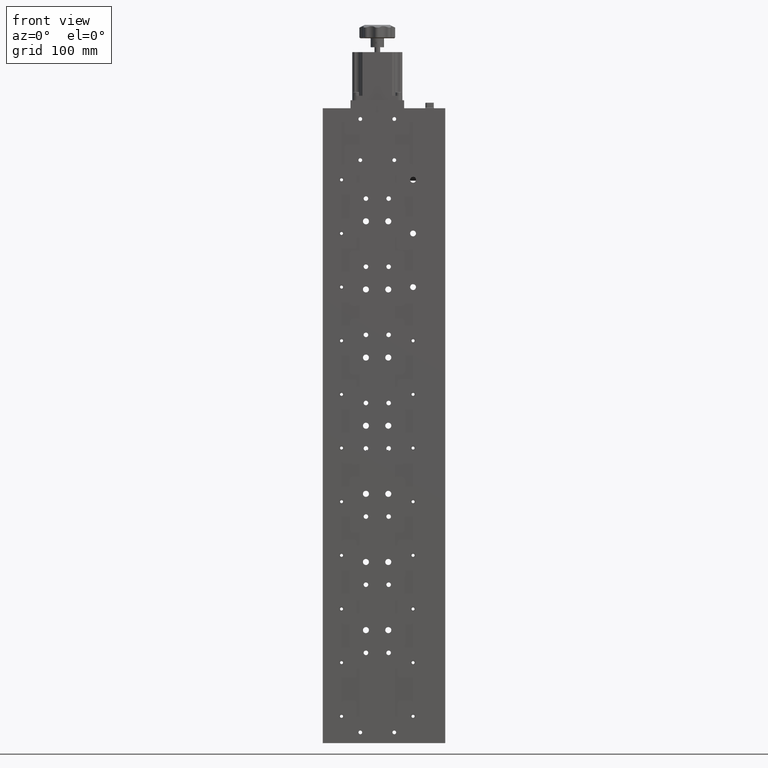
[diagram: clean part render]
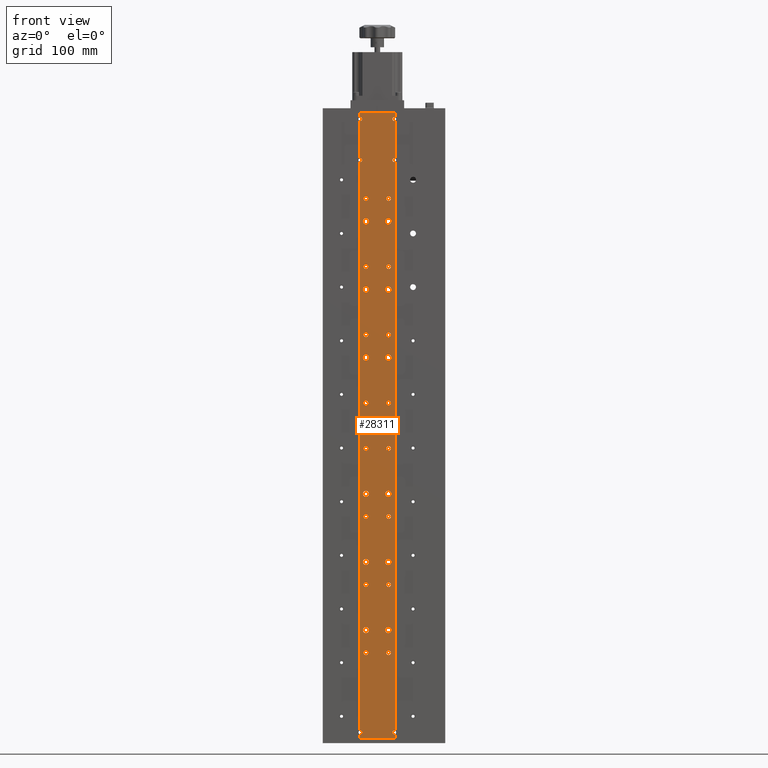
[diagram: same view with one face highlighted and labeled with its STEP entity id]
A machine part, front view. The second image highlights one B-rep face of the part: STEP entity #28311.
In plain terms, the highlighted planar face has unit normal (-0, 1, 0).
Its self-contained STEP definition (entity closure, byte-faithful):
#5 = DIRECTION ( 'NONE',  ( 0.0000000000000000000, 0.0000000000000000000, -1.000000000000000000 ) ) ;
#63 = FACE_BOUND ( 'NONE', #11296, .T. ) ;
#70 = ORIENTED_EDGE ( 'NONE', *, *, #28668, .T. ) ;
#189 = EDGE_LOOP ( 'NONE', ( #7776, #1551 ) ) ;
#193 = CARTESIAN_POINT ( 'NONE',  ( 2.089191643960054200, -10.41765062064795400, 25.40000000000006300 ) ) ;
#201 = DIRECTION ( 'NONE',  ( 0.0000000000000000000, 0.0000000000000000000, 1.000000000000000000 ) ) ;
#209 = EDGE_CURVE ( 'NONE', #12734, #5857, #7921, .T. ) ;
#225 = VERTEX_POINT ( 'NONE', #41640 ) ;
#239 = CIRCLE ( 'NONE', #4203, 3.378199999999997900 ) ;
#286 = ORIENTED_EDGE ( 'NONE', *, *, #23738, .T. ) ;
#307 = CARTESIAN_POINT ( 'NONE',  ( -23.31080835603994900, -10.41765062064795300, -101.5999999999999900 ) ) ;
#351 = CARTESIAN_POINT ( 'NONE',  ( -29.61080835603994300, -10.41765062064795300, 343.0000000000000000 ) ) ;
#363 = ORIENTED_EDGE ( 'NONE', *, *, #25461, .T. ) ;
#419 = DIRECTION ( 'NONE',  ( 0.0000000000000000000, 0.0000000000000000000, 1.000000000000000000 ) ) ;
#459 = VERTEX_POINT ( 'NONE', #28198 ) ;
#526 = VERTEX_POINT ( 'NONE', #9573 ) ;
#529 = EDGE_CURVE ( 'NONE', #34748, #30019, #13032, .T. ) ;
#657 = VERTEX_POINT ( 'NONE', #30575 ) ;
#714 = CIRCLE ( 'NONE', #8366, 2.552699999999998000 ) ;
#786 = DIRECTION ( 'NONE',  ( -3.689503073101735200E-032, 1.000000000000000000, 0.0000000000000000000 ) ) ;
#835 = AXIS2_PLACEMENT_3D ( 'NONE', #4884, #28184, #8235 ) ;
#927 = DIRECTION ( 'NONE',  ( -3.689503073101735200E-032, 1.000000000000000000, 0.0000000000000000000 ) ) ;
#941 = CARTESIAN_POINT ( 'NONE',  ( -23.31080835603994200, -10.41765062064795400, 25.40000000000006300 ) ) ;
#988 = VERTEX_POINT ( 'NONE', #5756 ) ;
#1090 = FACE_BOUND ( 'NONE', #25848, .T. ) ;
#1102 = DIRECTION ( 'NONE',  ( -3.689503073101735200E-032, 1.000000000000000000, 0.0000000000000000000 ) ) ;
#1133 = DIRECTION ( 'NONE',  ( 0.0000000000000000000, 0.0000000000000000000, 1.000000000000000000 ) ) ;
#1148 = ORIENTED_EDGE ( 'NONE', *, *, #31805, .T. ) ;
#1201 = ORIENTED_EDGE ( 'NONE', *, *, #12874, .T. ) ;
#1353 = ORIENTED_EDGE ( 'NONE', *, *, #11353, .T. ) ;
#1448 = EDGE_CURVE ( 'NONE', #15745, #33021, #8206, .T. ) ;
#1467 = CIRCLE ( 'NONE', #39482, 2.552700000000005100 ) ;
#1488 = EDGE_CURVE ( 'NONE', #15186, #8907, #21733, .T. ) ;
#1551 = ORIENTED_EDGE ( 'NONE', *, *, #28906, .T. ) ;
#1729 = ORIENTED_EDGE ( 'NONE', *, *, #6662, .T. ) ;
#1757 = CARTESIAN_POINT ( 'NONE',  ( -23.31080835603997800, -10.41765062064795300, 152.4000000000000300 ) ) ;
#1780 = CIRCLE ( 'NONE', #17340, 2.552700000000005100 ) ;
#1801 = DIRECTION ( 'NONE',  ( 0.0000000000000000000, 0.0000000000000000000, 1.000000000000000000 ) ) ;
#1839 = VERTEX_POINT ( 'NONE', #41959 ) ;
#1918 = VERTEX_POINT ( 'NONE', #39207 ) ;
#1924 = VERTEX_POINT ( 'NONE', #25818 ) ;
#1990 = VERTEX_POINT ( 'NONE', #9618 ) ;
#2054 = VERTEX_POINT ( 'NONE', #36859 ) ;
#2129 = FACE_BOUND ( 'NONE', #20179, .T. ) ;
#2167 = CARTESIAN_POINT ( 'NONE',  ( 2.089191643960057700, -10.41765062064795300, -101.5999999999999800 ) ) ;
#2168 = DIRECTION ( 'NONE',  ( 0.0000000000000000000, 0.0000000000000000000, 1.000000000000000000 ) ) ;
#2169 = EDGE_CURVE ( 'NONE', #31421, #37521, #35163, .T. ) ;
#2215 = AXIS2_PLACEMENT_3D ( 'NONE', #9226, #32532, #12565 ) ;
#2240 = AXIS2_PLACEMENT_3D ( 'NONE', #35597, #15623, #38956 ) ;
#2262 = ORIENTED_EDGE ( 'NONE', *, *, #24524, .T. ) ;
#2330 = EDGE_CURVE ( 'NONE', #40349, #29013, #24125, .T. ) ;
#2426 = EDGE_CURVE ( 'NONE', #988, #29158, #11104, .T. ) ;
#2460 = EDGE_CURVE ( 'NONE', #12870, #10296, #3821, .T. ) ;
#2478 = VERTEX_POINT ( 'NONE', #12918 ) ;
#2494 = AXIS2_PLACEMENT_3D ( 'NONE', #34787, #14783, #38116 ) ;
#2550 = VERTEX_POINT ( 'NONE', #40179 ) ;
#2703 = AXIS2_PLACEMENT_3D ( 'NONE', #351, #23585, #3671 ) ;
#2822 = CARTESIAN_POINT ( 'NONE',  ( 1.689191643960029000, -10.41765062064795300, 228.6000000000000800 ) ) ;
#2839 = ORIENTED_EDGE ( 'NONE', *, *, #37464, .T. ) ;
#2855 = AXIS2_PLACEMENT_3D ( 'NONE', #38108, #18137, #41445 ) ;
#2880 = EDGE_CURVE ( 'NONE', #23372, #25496, #9145, .T. ) ;
#2889 = AXIS2_PLACEMENT_3D ( 'NONE', #36251, #16306, #39621 ) ;
#3045 = CARTESIAN_POINT ( 'NONE',  ( -29.61080835603994300, -10.41765062064795100, 299.1000000000000200 ) ) ;
#3053 = EDGE_LOOP ( 'NONE', ( #27087, #15540 ) ) ;
#3120 = EDGE_CURVE ( 'NONE', #225, #31147, #15934, .T. ) ;
#3126 = CARTESIAN_POINT ( 'NONE',  ( 2.089191643960057700, -10.41765062064795400, 104.1527000000000400 ) ) ;
#3147 = ORIENTED_EDGE ( 'NONE', *, *, #26230, .T. ) ;
#3161 = CARTESIAN_POINT ( 'NONE',  ( 1.689191643960029000, -10.41765062064795100, 152.4000000000000300 ) ) ;
#3170 = CARTESIAN_POINT ( 'NONE',  ( -30.61080835603995000, -10.41765062064794900, -349.9999999999998900 ) ) ;
#3187 = FACE_BOUND ( 'NONE', #12769, .T. ) ;
#3255 = CIRCLE ( 'NONE', #2889, 3.378199999999997900 ) ;
#3266 = CARTESIAN_POINT ( 'NONE',  ( 2.089191643960044400, -10.41765062064795300, 175.2473000000000800 ) ) ;
#3502 = CARTESIAN_POINT ( 'NONE',  ( -23.31080835603994200, -10.41765062064795300, -254.0000000000000000 ) ) ;
#3527 = VERTEX_POINT ( 'NONE', #34017 ) ;
#3534 = DIRECTION ( 'NONE',  ( -3.689503073101735200E-032, 1.000000000000000000, 0.0000000000000000000 ) ) ;
#3536 = DIRECTION ( 'NONE',  ( 0.0000000000000000000, 0.0000000000000000000, 1.000000000000000000 ) ) ;
#3556 = EDGE_CURVE ( 'NONE', #20716, #1924, #17912, .T. ) ;
#3608 = EDGE_CURVE ( 'NONE', #30019, #34748, #239, .T. ) ;
#3618 = DIRECTION ( 'NONE',  ( -3.689503073101735200E-032, 1.000000000000000000, 0.0000000000000000000 ) ) ;
#3635 = DIRECTION ( 'NONE',  ( 0.0000000000000000000, 0.0000000000000000000, 1.000000000000000000 ) ) ;
#3671 = DIRECTION ( 'NONE',  ( 0.0000000000000000000, 0.0000000000000000000, 1.000000000000000000 ) ) ;
#3683 = EDGE_LOOP ( 'NONE', ( #38563, #11212 ) ) ;
#3686 = CIRCLE ( 'NONE', #2855, 2.552699999999998000 ) ;
#3821 = CIRCLE ( 'NONE', #10217, 2.099999999999992500 ) ;
#4031 = ORIENTED_EDGE ( 'NONE', *, *, #41954, .T. ) ;
#4203 = AXIS2_PLACEMENT_3D ( 'NONE', #8067, #31378, #11386 ) ;
#4217 = FACE_BOUND ( 'NONE', #14751, .T. ) ;
#4258 = DIRECTION ( 'NONE',  ( 0.0000000000000000000, 0.0000000000000000000, 1.000000000000000000 ) ) ;
#4412 = CARTESIAN_POINT ( 'NONE',  ( -23.31080835603997100, -10.41765062064795400, -3.378199999999942400 ) ) ;
#4502 = CARTESIAN_POINT ( 'NONE',  ( 9.389191643960051800, -10.41765062064795300, 298.8466185312619200 ) ) ;
#4588 = AXIS2_PLACEMENT_3D ( 'NONE', #34750, #14730, #38067 ) ;
#4662 = CARTESIAN_POINT ( 'NONE',  ( -74.98580835603993900, -10.41765062064795300, 350.0000000000000000 ) ) ;
#4703 = CARTESIAN_POINT ( 'NONE',  ( 8.389191643960051800, -10.41765062064795300, 343.0000000000000000 ) ) ;
#4749 = ORIENTED_EDGE ( 'NONE', *, *, #209, .T. ) ;
#4750 = AXIS2_PLACEMENT_3D ( 'NONE', #20843, #927, #24156 ) ;
#4832 = VERTEX_POINT ( 'NONE', #35591 ) ;
#4837 = PLANE ( 'NONE',  #15996 ) ;
#4842 = DIRECTION ( 'NONE',  ( 0.0000000000000000000, 0.0000000000000000000, -1.000000000000000000 ) ) ;
#4845 = CARTESIAN_POINT ( 'NONE',  ( -23.31080835603994900, -10.41765062064795300, -101.5999999999999900 ) ) ;
#4884 = CARTESIAN_POINT ( 'NONE',  ( -23.31080835603997100, -10.41765062064795400, 5.551115123125784000E-014 ) ) ;
#4959 = EDGE_CURVE ( 'NONE', #31799, #7346, #5205, .T. ) ;
#4976 = CIRCLE ( 'NONE', #7815, 2.552699999999990900 ) ;
#5006 = EDGE_CURVE ( 'NONE', #41412, #1918, #13008, .T. ) ;
#5105 = VERTEX_POINT ( 'NONE', #24001 ) ;
#5129 = DIRECTION ( 'NONE',  ( 0.0000000000000000000, 0.0000000000000000000, 1.000000000000000000 ) ) ;
#5205 = CIRCLE ( 'NONE', #22924, 2.552699999999990900 ) ;
#5224 = DIRECTION ( 'NONE',  ( -3.689503073101735200E-032, 1.000000000000000000, 0.0000000000000000000 ) ) ;
#5245 = AXIS2_PLACEMENT_3D ( 'NONE', #8656, #31951, #11993 ) ;
#5349 = CARTESIAN_POINT ( 'NONE',  ( -29.61080835603994300, -10.41765062064794900, -345.0999999999999700 ) ) ;
#5376 = DIRECTION ( 'NONE',  ( -3.029454718961704600E-018, 1.000000000000000000, 0.0000000000000000000 ) ) ;
#5470 = CIRCLE ( 'NONE', #15740, 3.378199999999997900 ) ;
#5503 = CARTESIAN_POINT ( 'NONE',  ( -30.61080835603995000, -10.41765062064795300, 295.1533814687381300 ) ) ;
#5518 = DIRECTION ( 'NONE',  ( 0.0000000000000000000, 0.0000000000000000000, 1.000000000000000000 ) ) ;
#5534 = CIRCLE ( 'NONE', #23978, 2.099999999999992500 ) ;
#5564 = DIRECTION ( 'NONE',  ( -3.689503073101735200E-032, 1.000000000000000000, 0.0000000000000000000 ) ) ;
#5571 = DIRECTION ( 'NONE',  ( -3.689503073101735200E-032, 1.000000000000000000, 0.0000000000000000000 ) ) ;
#5656 = AXIS2_PLACEMENT_3D ( 'NONE', #20722, #786, #24019 ) ;
#5667 = AXIS2_PLACEMENT_3D ( 'NONE', #16645, #39985, #20008 ) ;
#5720 = CARTESIAN_POINT ( 'NONE',  ( 1.689191643960029400, -10.41765062064795300, -231.9781999999999600 ) ) ;
#5725 = LINE ( 'NONE', #17405, #13528 ) ;
#5756 = CARTESIAN_POINT ( 'NONE',  ( 2.089191643960054600, -10.41765062064795300, -256.5527000000000200 ) ) ;
#5768 = EDGE_CURVE ( 'NONE', #40472, #27031, #26157, .T. ) ;
#5784 = CIRCLE ( 'NONE', #41597, 2.099999999999990800 ) ;
#5857 = VERTEX_POINT ( 'NONE', #5936 ) ;
#5936 = CARTESIAN_POINT ( 'NONE',  ( -23.31080835603994200, -10.41765062064795400, 27.95270000000006000 ) ) ;
#6065 = CARTESIAN_POINT ( 'NONE',  ( -23.31080835603994200, -10.41765062064795400, 22.84730000000006500 ) ) ;
#6157 = DIRECTION ( 'NONE',  ( 0.0000000000000000000, 0.0000000000000000000, 1.000000000000000000 ) ) ;
#6191 = AXIS2_PLACEMENT_3D ( 'NONE', #8003, #31311, #11314 ) ;
#6228 = DIRECTION ( 'NONE',  ( -3.029454718961704600E-018, 1.000000000000000000, 0.0000000000000000000 ) ) ;
#6292 = FACE_BOUND ( 'NONE', #19837, .T. ) ;
#6356 = CIRCLE ( 'NONE', #20216, 2.552699999999998000 ) ;
#6361 = DIRECTION ( 'NONE',  ( -3.029454718961704600E-018, 1.000000000000000000, 0.0000000000000000000 ) ) ;
#6380 = ORIENTED_EDGE ( 'NONE', *, *, #41296, .T. ) ;
#6445 = CARTESIAN_POINT ( 'NONE',  ( 8.389191643960051800, -10.41765062064795300, 340.8999999999999800 ) ) ;
#6492 = DIRECTION ( 'NONE',  ( 0.0000000000000000000, 0.0000000000000000000, 1.000000000000000000 ) ) ;
#6531 = EDGE_CURVE ( 'NONE', #18501, #40978, #39526, .T. ) ;
#6589 = EDGE_LOOP ( 'NONE', ( #25253, #13701 ) ) ;
#6656 = CARTESIAN_POINT ( 'NONE',  ( -29.61080835603994300, -10.41765062064795100, 297.0000000000000600 ) ) ;
#6662 = EDGE_CURVE ( 'NONE', #5857, #12734, #11310, .T. ) ;
#6680 = LINE ( 'NONE', #13214, #41060 ) ;
#6719 = ORIENTED_EDGE ( 'NONE', *, *, #37498, .T. ) ;
#6841 = DIRECTION ( 'NONE',  ( 0.0000000000000000000, 0.0000000000000000000, 1.000000000000000000 ) ) ;
#6890 = DIRECTION ( 'NONE',  ( -3.029454718961704600E-018, 1.000000000000000000, 0.0000000000000000000 ) ) ;
#6988 = DIRECTION ( 'NONE',  ( 0.0000000000000000000, 0.0000000000000000000, 1.000000000000000000 ) ) ;
#6996 = CARTESIAN_POINT ( 'NONE',  ( -23.31080835603993500, -10.41765062064795300, 177.8000000000000700 ) ) ;
#7092 = CARTESIAN_POINT ( 'NONE',  ( 1.689191643960029000, -10.41765062064795300, 228.6000000000000800 ) ) ;
#7213 = EDGE_CURVE ( 'NONE', #20420, #22159, #8130, .T. ) ;
#7226 = CIRCLE ( 'NONE', #29940, 2.552699999999998000 ) ;
#7241 = DIRECTION ( 'NONE',  ( -3.689503073101735200E-032, 1.000000000000000000, 0.0000000000000000000 ) ) ;
#7250 = ORIENTED_EDGE ( 'NONE', *, *, #41662, .T. ) ;
#7346 = VERTEX_POINT ( 'NONE', #21087 ) ;
#7453 = VECTOR ( 'NONE', #16918, 1000.000000000000000 ) ;
#7645 = ORIENTED_EDGE ( 'NONE', *, *, #26966, .T. ) ;
#7736 = EDGE_LOOP ( 'NONE', ( #30415, #3147 ) ) ;
#7774 = DIRECTION ( 'NONE',  ( 0.0000000000000000000, 0.0000000000000000000, 1.000000000000000000 ) ) ;
#7776 = ORIENTED_EDGE ( 'NONE', *, *, #2330, .T. ) ;
#7815 = AXIS2_PLACEMENT_3D ( 'NONE', #25528, #5571, #28874 ) ;
#7848 = FACE_OUTER_BOUND ( 'NONE', #28216, .T. ) ;
#7901 = CIRCLE ( 'NONE', #5656, 2.552699999999990900 ) ;
#7911 = CARTESIAN_POINT ( 'NONE',  ( 2.089191643960057700, -10.41765062064795400, 101.6000000000000400 ) ) ;
#7921 = CIRCLE ( 'NONE', #24927, 2.552699999999998000 ) ;
#8003 = CARTESIAN_POINT ( 'NONE',  ( -23.31080835603997800, -10.41765062064795300, -76.19999999999997400 ) ) ;
#8048 = DIRECTION ( 'NONE',  ( -1.000000000000000000, 0.0000000000000000000, 0.0000000000000000000 ) ) ;
#8067 = CARTESIAN_POINT ( 'NONE',  ( 1.689191643960029000, -10.41765062064795300, 5.551115123125782700E-014 ) ) ;
#8113 = CARTESIAN_POINT ( 'NONE',  ( -74.98580835603993900, -10.41765062064795100, -350.0000000000000000 ) ) ;
#8130 = CIRCLE ( 'NONE', #26193, 2.552699999999990900 ) ;
#8199 = DIRECTION ( 'NONE',  ( 0.0000000000000000000, 0.0000000000000000000, 1.000000000000000000 ) ) ;
#8206 = LINE ( 'NONE', #38187, #16023 ) ;
#8235 = DIRECTION ( 'NONE',  ( 0.0000000000000000000, 0.0000000000000000000, 1.000000000000000000 ) ) ;
#8242 = CARTESIAN_POINT ( 'NONE',  ( 2.089191643960054200, -10.41765062064795300, -254.0000000000000000 ) ) ;
#8335 = EDGE_CURVE ( 'NONE', #25496, #23372, #39746, .T. ) ;
#8366 = AXIS2_PLACEMENT_3D ( 'NONE', #27171, #7241, #30554 ) ;
#8439 = LINE ( 'NONE', #41680, #26175 ) ;
#8476 = ORIENTED_EDGE ( 'NONE', *, *, #6531, .T. ) ;
#8610 = AXIS2_PLACEMENT_3D ( 'NONE', #1757, #25073, #5129 ) ;
#8619 = CARTESIAN_POINT ( 'NONE',  ( 1.689191643960029000, -10.41765062064795100, 155.7782000000000300 ) ) ;
#8639 = VERTEX_POINT ( 'NONE', #25251 ) ;
#8656 = CARTESIAN_POINT ( 'NONE',  ( 2.089191643960054200, -10.41765062064795300, -25.40000000000000600 ) ) ;
#8783 = CARTESIAN_POINT ( 'NONE',  ( 1.689191643960029000, -10.41765062064795100, -76.19999999999996000 ) ) ;
#8878 = FACE_BOUND ( 'NONE', #11791, .T. ) ;
#8907 = VERTEX_POINT ( 'NONE', #10204 ) ;
#8910 = EDGE_CURVE ( 'NONE', #13783, #35821, #16308, .T. ) ;
#8927 = VERTEX_POINT ( 'NONE', #40250 ) ;
#8943 = CIRCLE ( 'NONE', #29083, 2.099999999999992500 ) ;
#8974 = CARTESIAN_POINT ( 'NONE',  ( -23.31080835603994200, -10.41765062064795300, -22.84730000000000800 ) ) ;
#9104 = ORIENTED_EDGE ( 'NONE', *, *, #4959, .T. ) ;
#9132 = CARTESIAN_POINT ( 'NONE',  ( 2.089191643960054200, -10.41765062064795300, -254.0000000000000000 ) ) ;
#9139 = CARTESIAN_POINT ( 'NONE',  ( -23.31080835603993500, -10.41765062064795300, 180.3527000000000600 ) ) ;
#9145 = CIRCLE ( 'NONE', #9968, 3.378199999999997900 ) ;
#9146 = ORIENTED_EDGE ( 'NONE', *, *, #32045, .T. ) ;
#9226 = CARTESIAN_POINT ( 'NONE',  ( 1.689191643960029000, -10.41765062064795300, 76.20000000000004500 ) ) ;
#9260 = AXIS2_PLACEMENT_3D ( 'NONE', #9886, #33183, #13225 ) ;
#9342 = EDGE_CURVE ( 'NONE', #30330, #16896, #37124, .T. ) ;
#9382 = EDGE_CURVE ( 'NONE', #35145, #21212, #15205, .T. ) ;
#9482 = EDGE_LOOP ( 'NONE', ( #38775, #70 ) ) ;
#9553 = CARTESIAN_POINT ( 'NONE',  ( -23.31080835603994200, -10.41765062064795300, -251.4472999999999800 ) ) ;
#9573 = CARTESIAN_POINT ( 'NONE',  ( 9.389191643960058900, -10.41765062064795300, 350.0000000000000000 ) ) ;
#9589 = ORIENTED_EDGE ( 'NONE', *, *, #3608, .T. ) ;
#9618 = CARTESIAN_POINT ( 'NONE',  ( 2.089191643960044400, -10.41765062064795400, -180.3527000000000000 ) ) ;
#9643 = VERTEX_POINT ( 'NONE', #25010 ) ;
#9686 = VERTEX_POINT ( 'NONE', #5349 ) ;
#9711 = CIRCLE ( 'NONE', #10998, 2.552699999999990900 ) ;
#9801 = EDGE_LOOP ( 'NONE', ( #28054, #17974 ) ) ;
#9855 = CIRCLE ( 'NONE', #36649, 3.378199999999997900 ) ;
#9886 = CARTESIAN_POINT ( 'NONE',  ( 1.689191643960029000, -10.41765062064795300, 76.20000000000004500 ) ) ;
#9934 = FACE_BOUND ( 'NONE', #28937, .T. ) ;
#9948 = DIRECTION ( 'NONE',  ( -3.689503073101735200E-032, 1.000000000000000000, 0.0000000000000000000 ) ) ;
#9957 = CARTESIAN_POINT ( 'NONE',  ( -23.31080835603997100, -10.41765062064795300, 149.0218000000000400 ) ) ;
#9968 = AXIS2_PLACEMENT_3D ( 'NONE', #18832, #42143, #22209 ) ;
#9991 = CIRCLE ( 'NONE', #4750, 2.552700000000018800 ) ;
#9992 = DIRECTION ( 'NONE',  ( 0.0000000000000000000, 0.0000000000000000000, 1.000000000000000000 ) ) ;
#10025 = AXIS2_PLACEMENT_3D ( 'NONE', #40110, #20135, #201 ) ;
#10154 = EDGE_CURVE ( 'NONE', #26180, #17697, #14002, .T. ) ;
#10204 = CARTESIAN_POINT ( 'NONE',  ( 8.389191643960051800, -10.41765062064795100, 294.9000000000000300 ) ) ;
#10217 = AXIS2_PLACEMENT_3D ( 'NONE', #26199, #6228, #29543 ) ;
#10249 = VERTEX_POINT ( 'NONE', #42578 ) ;
#10296 = VERTEX_POINT ( 'NONE', #6445 ) ;
#10313 = DIRECTION ( 'NONE',  ( 0.0000000000000000000, 0.0000000000000000000, 1.000000000000000000 ) ) ;
#10409 = DIRECTION ( 'NONE',  ( 0.0000000000000000000, 0.0000000000000000000, 1.000000000000000000 ) ) ;
#10421 = ORIENTED_EDGE ( 'NONE', *, *, #8910, .T. ) ;
#10527 = CIRCLE ( 'NONE', #42594, 3.378199999999997900 ) ;
#10549 = CARTESIAN_POINT ( 'NONE',  ( -23.31080835603997100, -10.41765062064795400, 231.9782000000000700 ) ) ;
#10589 = ORIENTED_EDGE ( 'NONE', *, *, #14596, .T. ) ;
#10699 = CIRCLE ( 'NONE', #24691, 3.378199999999997900 ) ;
#10897 = CIRCLE ( 'NONE', #5667, 2.552699999999990900 ) ;
#10959 = FACE_BOUND ( 'NONE', #3683, .T. ) ;
#10998 = AXIS2_PLACEMENT_3D ( 'NONE', #4845, #28143, #8199 ) ;
#11041 = AXIS2_PLACEMENT_3D ( 'NONE', #12047, #35376, #15398 ) ;
#11045 = VECTOR ( 'NONE', #7774, 1000.000000000000000 ) ;
#11093 = VERTEX_POINT ( 'NONE', #38714 ) ;
#11104 = CIRCLE ( 'NONE', #26722, 2.552700000000018800 ) ;
#11118 = VECTOR ( 'NONE', #6988, 1000.000000000000000 ) ;
#11119 = EDGE_CURVE ( 'NONE', #32725, #23061, #10699, .T. ) ;
#11126 = CIRCLE ( 'NONE', #32265, 2.552699999999990900 ) ;
#11162 = VERTEX_POINT ( 'NONE', #39428 ) ;
#11212 = ORIENTED_EDGE ( 'NONE', *, *, #39097, .T. ) ;
#11219 = DIRECTION ( 'NONE',  ( 0.0000000000000000000, 0.0000000000000000000, 1.000000000000000000 ) ) ;
#11246 = ORIENTED_EDGE ( 'NONE', *, *, #2880, .T. ) ;
#11296 = EDGE_LOOP ( 'NONE', ( #20202, #24074 ) ) ;
#11310 = CIRCLE ( 'NONE', #21967, 2.552699999999998000 ) ;
#11314 = DIRECTION ( 'NONE',  ( 0.0000000000000000000, 0.0000000000000000000, 1.000000000000000000 ) ) ;
#11353 = EDGE_CURVE ( 'NONE', #5105, #35066, #19533, .T. ) ;
#11379 = VERTEX_POINT ( 'NONE', #27163 ) ;
#11386 = DIRECTION ( 'NONE',  ( 0.0000000000000000000, 0.0000000000000000000, 1.000000000000000000 ) ) ;
#11423 = ORIENTED_EDGE ( 'NONE', *, *, #13931, .T. ) ;
#11555 = DIRECTION ( 'NONE',  ( 0.0000000000000000000, 0.0000000000000000000, 1.000000000000000000 ) ) ;
#11566 = CIRCLE ( 'NONE', #29190, 2.552699999999990900 ) ;
#11683 = EDGE_CURVE ( 'NONE', #25594, #36995, #18174, .T. ) ;
#11787 = EDGE_LOOP ( 'NONE', ( #12813, #1353 ) ) ;
#11791 = EDGE_LOOP ( 'NONE', ( #20187, #29425 ) ) ;
#11918 = EDGE_CURVE ( 'NONE', #33021, #15229, #17590, .T. ) ;
#11945 = ORIENTED_EDGE ( 'NONE', *, *, #24807, .T. ) ;
#11993 = DIRECTION ( 'NONE',  ( 0.0000000000000000000, 0.0000000000000000000, 1.000000000000000000 ) ) ;
#12011 = FACE_BOUND ( 'NONE', #41400, .T. ) ;
#12047 = CARTESIAN_POINT ( 'NONE',  ( 2.089191643960057700, -10.41765062064795400, 101.6000000000000400 ) ) ;
#12107 = DIRECTION ( 'NONE',  ( 0.0000000000000000000, 0.0000000000000000000, 1.000000000000000000 ) ) ;
#12113 = CARTESIAN_POINT ( 'NONE',  ( -23.31080835603994200, -10.41765062064795400, 254.0000000000000000 ) ) ;
#12123 = CIRCLE ( 'NONE', #40390, 3.378199999999997900 ) ;
#12126 = EDGE_CURVE ( 'NONE', #22172, #42585, #39993, .T. ) ;
#12289 = EDGE_CURVE ( 'NONE', #41108, #8639, #17509, .T. ) ;
#12375 = CARTESIAN_POINT ( 'NONE',  ( 1.689191643960029000, -10.41765062064795300, -152.3999999999999500 ) ) ;
#12395 = CARTESIAN_POINT ( 'NONE',  ( 1.689191643960029400, -10.41765062064795100, -79.57819999999996700 ) ) ;
#12463 = CARTESIAN_POINT ( 'NONE',  ( -23.31080835603997100, -10.41765062064795400, -152.3999999999999500 ) ) ;
#12467 = ORIENTED_EDGE ( 'NONE', *, *, #28966, .T. ) ;
#12472 = CARTESIAN_POINT ( 'NONE',  ( -23.31080835603994200, -10.41765062064795300, -27.95270000000000400 ) ) ;
#12480 = DIRECTION ( 'NONE',  ( 0.0000000000000000000, 0.0000000000000000000, 1.000000000000000000 ) ) ;
#12553 = CIRCLE ( 'NONE', #13344, 3.378199999999997900 ) ;
#12565 = DIRECTION ( 'NONE',  ( 0.0000000000000000000, 0.0000000000000000000, 1.000000000000000000 ) ) ;
#12734 = VERTEX_POINT ( 'NONE', #6065 ) ;
#12769 = EDGE_LOOP ( 'NONE', ( #11423, #36428 ) ) ;
#12782 = VERTEX_POINT ( 'NONE', #3170 ) ;
#12813 = ORIENTED_EDGE ( 'NONE', *, *, #42478, .T. ) ;
#12870 = VERTEX_POINT ( 'NONE', #40304 ) ;
#12874 = EDGE_CURVE ( 'NONE', #19377, #14626, #41430, .T. ) ;
#12880 = AXIS2_PLACEMENT_3D ( 'NONE', #2822, #26135, #6157 ) ;
#12918 = CARTESIAN_POINT ( 'NONE',  ( 2.089191643960044000, -10.41765062064795400, -175.2473000000000200 ) ) ;
#13008 = CIRCLE ( 'NONE', #27427, 2.552699999999998000 ) ;
#13032 = CIRCLE ( 'NONE', #38902, 3.378199999999997900 ) ;
#13033 = ORIENTED_EDGE ( 'NONE', *, *, #8335, .T. ) ;
#13060 = FACE_BOUND ( 'NONE', #7736, .T. ) ;
#13104 = EDGE_CURVE ( 'NONE', #23464, #2054, #29417, .T. ) ;
#13138 = DIRECTION ( 'NONE',  ( -3.689503073101735200E-032, 1.000000000000000000, 0.0000000000000000000 ) ) ;
#13173 = CIRCLE ( 'NONE', #32915, 2.099999999999990800 ) ;
#13214 = CARTESIAN_POINT ( 'NONE',  ( -30.61080835603995000, -10.41765062064795100, -390.0780488547033000 ) ) ;
#13225 = DIRECTION ( 'NONE',  ( 0.0000000000000000000, 0.0000000000000000000, 1.000000000000000000 ) ) ;
#13236 = EDGE_LOOP ( 'NONE', ( #6719, #25284 ) ) ;
#13252 = DIRECTION ( 'NONE',  ( -3.689503073101735200E-032, 1.000000000000000000, 0.0000000000000000000 ) ) ;
#13256 = DIRECTION ( 'NONE',  ( -3.689503073101735200E-032, 1.000000000000000000, 0.0000000000000000000 ) ) ;
#13264 = AXIS2_PLACEMENT_3D ( 'NONE', #8783, #32077, #12107 ) ;
#13268 = DIRECTION ( 'NONE',  ( -3.689503073101735200E-032, 1.000000000000000000, 0.0000000000000000000 ) ) ;
#13305 = CARTESIAN_POINT ( 'NONE',  ( -29.61080835603994300, -10.41765062064795100, 294.9000000000000300 ) ) ;
#13344 = AXIS2_PLACEMENT_3D ( 'NONE', #39728, #19749, #43064 ) ;
#13406 = ORIENTED_EDGE ( 'NONE', *, *, #25968, .T. ) ;
#13489 = AXIS2_PLACEMENT_3D ( 'NONE', #29934, #9948, #33260 ) ;
#13495 = ORIENTED_EDGE ( 'NONE', *, *, #24772, .T. ) ;
#13528 = VECTOR ( 'NONE', #20761, 1000.000000000000000 ) ;
#13662 = AXIS2_PLACEMENT_3D ( 'NONE', #42062, #22121, #2168 ) ;
#13671 = AXIS2_PLACEMENT_3D ( 'NONE', #307, #23551, #3635 ) ;
#13701 = ORIENTED_EDGE ( 'NONE', *, *, #5006, .T. ) ;
#13730 = ORIENTED_EDGE ( 'NONE', *, *, #25399, .T. ) ;
#13783 = VERTEX_POINT ( 'NONE', #5503 ) ;
#13785 = VERTEX_POINT ( 'NONE', #8974 ) ;
#13802 = AXIS2_PLACEMENT_3D ( 'NONE', #15150, #38494, #18507 ) ;
#13894 = DIRECTION ( 'NONE',  ( -3.689503073101735200E-032, 1.000000000000000000, 0.0000000000000000000 ) ) ;
#13931 = EDGE_CURVE ( 'NONE', #23061, #32725, #12553, .T. ) ;
#13994 = DIRECTION ( 'NONE',  ( -3.029454718961704600E-018, 1.000000000000000000, 0.0000000000000000000 ) ) ;
#14002 = CIRCLE ( 'NONE', #25216, 2.552700000000018800 ) ;
#14017 = CIRCLE ( 'NONE', #25472, 2.099999999999990800 ) ;
#14222 = CARTESIAN_POINT ( 'NONE',  ( -29.61080835603994300, -10.41765062064795300, 345.0999999999999700 ) ) ;
#14267 = DIRECTION ( 'NONE',  ( -3.689503073101735200E-032, 1.000000000000000000, 0.0000000000000000000 ) ) ;
#14272 = CARTESIAN_POINT ( 'NONE',  ( -23.31080835603994200, -10.41765062064795400, 99.04730000000003500 ) ) ;
#14329 = CARTESIAN_POINT ( 'NONE',  ( 8.389191643960057100, -10.41765062064795100, -340.8999999999999800 ) ) ;
#14504 = VERTEX_POINT ( 'NONE', #26429 ) ;
#14578 = CARTESIAN_POINT ( 'NONE',  ( 8.389191643960051800, -10.41765062064795100, 299.1000000000000200 ) ) ;
#14596 = EDGE_CURVE ( 'NONE', #36995, #25594, #19387, .T. ) ;
#14626 = VERTEX_POINT ( 'NONE', #30502 ) ;
#14718 = EDGE_CURVE ( 'NONE', #1924, #20716, #9991, .T. ) ;
#14730 = DIRECTION ( 'NONE',  ( -3.689503073101735200E-032, 1.000000000000000000, 0.0000000000000000000 ) ) ;
#14751 = EDGE_LOOP ( 'NONE', ( #9589, #35635 ) ) ;
#14783 = DIRECTION ( 'NONE',  ( -3.689503073101735200E-032, 1.000000000000000000, 0.0000000000000000000 ) ) ;
#14910 = CARTESIAN_POINT ( 'NONE',  ( -23.31080835603997100, -10.41765062064795400, 225.2218000000000900 ) ) ;
#14998 = DIRECTION ( 'NONE',  ( -3.029454718961630700E-018, 1.000000000000000000, 0.0000000000000000000 ) ) ;
#15120 = ORIENTED_EDGE ( 'NONE', *, *, #33003, .F. ) ;
#15142 = FACE_BOUND ( 'NONE', #33224, .T. ) ;
#15150 = CARTESIAN_POINT ( 'NONE',  ( 8.389191643960051800, -10.41765062064795100, 297.0000000000000600 ) ) ;
#15186 = VERTEX_POINT ( 'NONE', #34086 ) ;
#15205 = CIRCLE ( 'NONE', #9260, 3.378199999999997900 ) ;
#15214 = CIRCLE ( 'NONE', #2240, 2.099999999999990800 ) ;
#15229 = VERTEX_POINT ( 'NONE', #14222 ) ;
#15398 = DIRECTION ( 'NONE',  ( 0.0000000000000000000, 0.0000000000000000000, 1.000000000000000000 ) ) ;
#15468 = ORIENTED_EDGE ( 'NONE', *, *, #40152, .T. ) ;
#15483 = DIRECTION ( 'NONE',  ( 0.0000000000000000000, 0.0000000000000000000, 1.000000000000000000 ) ) ;
#15516 = CARTESIAN_POINT ( 'NONE',  ( -29.61080835603994300, -10.41765062064795100, 297.0000000000000600 ) ) ;
#15540 = ORIENTED_EDGE ( 'NONE', *, *, #9342, .T. ) ;
#15623 = DIRECTION ( 'NONE',  ( -3.029454718961704600E-018, 1.000000000000000000, 0.0000000000000000000 ) ) ;
#15729 = DIRECTION ( 'NONE',  ( 0.0000000000000000000, 0.0000000000000000000, 1.000000000000000000 ) ) ;
#15740 = AXIS2_PLACEMENT_3D ( 'NONE', #41696, #21754, #1801 ) ;
#15745 = VERTEX_POINT ( 'NONE', #36303 ) ;
#15822 = DIRECTION ( 'NONE',  ( 0.0000000000000000000, 0.0000000000000000000, 1.000000000000000000 ) ) ;
#15835 = ORIENTED_EDGE ( 'NONE', *, *, #3120, .T. ) ;
#15837 = CARTESIAN_POINT ( 'NONE',  ( -29.61080835603994300, -10.41765062064795300, 343.0000000000000000 ) ) ;
#15934 = CIRCLE ( 'NONE', #17242, 2.099999999999990800 ) ;
#15987 = CARTESIAN_POINT ( 'NONE',  ( -23.31080835603993500, -10.41765062064795400, -177.8000000000000100 ) ) ;
#15996 = AXIS2_PLACEMENT_3D ( 'NONE', #34988, #14998, #38345 ) ;
#16023 = VECTOR ( 'NONE', #4842, 1000.000000000000000 ) ;
#16057 = ORIENTED_EDGE ( 'NONE', *, *, #36006, .T. ) ;
#16211 = CARTESIAN_POINT ( 'NONE',  ( 9.389191643960051800, -10.41765062064795300, -341.1533814687379600 ) ) ;
#16286 = DIRECTION ( 'NONE',  ( -3.029454718961704600E-018, 1.000000000000000000, 0.0000000000000000000 ) ) ;
#16301 = CARTESIAN_POINT ( 'NONE',  ( -23.31080835603997100, -10.41765062064795400, 76.20000000000003100 ) ) ;
#16306 = DIRECTION ( 'NONE',  ( -3.689503073101735200E-032, 1.000000000000000000, 0.0000000000000000000 ) ) ;
#16308 = LINE ( 'NONE', #30053, #7453 ) ;
#16640 = CARTESIAN_POINT ( 'NONE',  ( 1.689191643960029400, -10.41765062064795300, 72.82180000000005300 ) ) ;
#16645 = CARTESIAN_POINT ( 'NONE',  ( -23.31080835603993500, -10.41765062064795400, -177.8000000000000100 ) ) ;
#16693 = FACE_BOUND ( 'NONE', #9801, .T. ) ;
#16828 = ORIENTED_EDGE ( 'NONE', *, *, #18746, .T. ) ;
#16879 = CARTESIAN_POINT ( 'NONE',  ( 9.389191643960055300, -10.41765062064795100, -390.0780488547034100 ) ) ;
#16896 = VERTEX_POINT ( 'NONE', #36925 ) ;
#16918 = DIRECTION ( 'NONE',  ( 0.0000000000000000000, 0.0000000000000000000, -1.000000000000000000 ) ) ;
#16969 = ORIENTED_EDGE ( 'NONE', *, *, #13104, .T. ) ;
#17057 = DIRECTION ( 'NONE',  ( -3.689503073101735200E-032, 1.000000000000000000, 0.0000000000000000000 ) ) ;
#17232 = CARTESIAN_POINT ( 'NONE',  ( -23.31080835603997100, -10.41765062064795400, 72.82180000000003900 ) ) ;
#17242 = AXIS2_PLACEMENT_3D ( 'NONE', #15516, #38845, #18852 ) ;
#17256 = ORIENTED_EDGE ( 'NONE', *, *, #27024, .T. ) ;
#17340 = AXIS2_PLACEMENT_3D ( 'NONE', #19560, #42870, #22883 ) ;
#17362 = CIRCLE ( 'NONE', #18009, 2.099999999999990800 ) ;
#17401 = CIRCLE ( 'NONE', #12880, 3.378199999999997900 ) ;
#17405 = CARTESIAN_POINT ( 'NONE',  ( 9.389191643960055300, -10.41765062064795100, -390.0780488547034100 ) ) ;
#17424 = EDGE_CURVE ( 'NONE', #24820, #38781, #10527, .T. ) ;
#17455 = DIRECTION ( 'NONE',  ( -3.029454718961704600E-018, 1.000000000000000000, 0.0000000000000000000 ) ) ;
#17509 = CIRCLE ( 'NONE', #41192, 2.552700000000018800 ) ;
#17553 = DIRECTION ( 'NONE',  ( 0.0000000000000000000, 0.0000000000000000000, 1.000000000000000000 ) ) ;
#17590 = CIRCLE ( 'NONE', #2703, 2.099999999999990800 ) ;
#17651 = CARTESIAN_POINT ( 'NONE',  ( 9.389191643960055300, -10.41765062064795100, -390.0780488547034100 ) ) ;
#17697 = VERTEX_POINT ( 'NONE', #42682 ) ;
#17730 = FACE_BOUND ( 'NONE', #189, .T. ) ;
#17783 = CIRCLE ( 'NONE', #22386, 2.099999999999992500 ) ;
#17793 = CARTESIAN_POINT ( 'NONE',  ( 2.089191643960054200, -10.41765062064795400, 254.0000000000000000 ) ) ;
#17871 = DIRECTION ( 'NONE',  ( -3.689503073101735200E-032, 1.000000000000000000, 0.0000000000000000000 ) ) ;
#17912 = CIRCLE ( 'NONE', #40735, 2.552700000000018800 ) ;
#17974 = ORIENTED_EDGE ( 'NONE', *, *, #2426, .T. ) ;
#18009 = AXIS2_PLACEMENT_3D ( 'NONE', #6656, #29975, #9992 ) ;
#18137 = DIRECTION ( 'NONE',  ( -3.689503073101735200E-032, 1.000000000000000000, 0.0000000000000000000 ) ) ;
#18174 = CIRCLE ( 'NONE', #13264, 3.378199999999997900 ) ;
#18343 = DIRECTION ( 'NONE',  ( -3.029454718961704600E-018, 1.000000000000000000, 0.0000000000000000000 ) ) ;
#18501 = VERTEX_POINT ( 'NONE', #38320 ) ;
#18507 = DIRECTION ( 'NONE',  ( -1.000000000000000000, 0.0000000000000000000, 0.0000000000000000000 ) ) ;
#18583 = CARTESIAN_POINT ( 'NONE',  ( 9.389191643960051800, -10.41765062064795100, 344.8466185312619800 ) ) ;
#18629 = CARTESIAN_POINT ( 'NONE',  ( -23.31080835603994900, -10.41765062064795300, -99.04730000000000700 ) ) ;
#18650 = ORIENTED_EDGE ( 'NONE', *, *, #2460, .T. ) ;
#18705 = CIRCLE ( 'NONE', #835, 3.378199999999997900 ) ;
#18746 = EDGE_CURVE ( 'NONE', #1839, #12782, #6680, .T. ) ;
#18776 = FACE_BOUND ( 'NONE', #27713, .T. ) ;
#18832 = CARTESIAN_POINT ( 'NONE',  ( 1.689191643960029000, -10.41765062064795100, 152.4000000000000300 ) ) ;
#18852 = DIRECTION ( 'NONE',  ( 0.0000000000000000000, 0.0000000000000000000, 1.000000000000000000 ) ) ;
#18943 = LINE ( 'NONE', #4662, #35654 ) ;
#19172 = DIRECTION ( 'NONE',  ( 0.0000000000000000000, 0.0000000000000000000, 1.000000000000000000 ) ) ;
#19190 = AXIS2_PLACEMENT_3D ( 'NONE', #7092, #30394, #10409 ) ;
#19291 = VERTEX_POINT ( 'NONE', #13305 ) ;
#19319 = DIRECTION ( 'NONE',  ( 0.0000000000000000000, 0.0000000000000000000, 1.000000000000000000 ) ) ;
#19377 = VERTEX_POINT ( 'NONE', #27149 ) ;
#19387 = CIRCLE ( 'NONE', #10025, 3.378199999999997900 ) ;
#19533 = CIRCLE ( 'NONE', #41719, 3.378199999999997900 ) ;
#19560 = CARTESIAN_POINT ( 'NONE',  ( 2.089191643960057700, -10.41765062064795300, -101.5999999999999800 ) ) ;
#19577 = CARTESIAN_POINT ( 'NONE',  ( -23.31080835603997100, -10.41765062064795400, 5.551115123125784000E-014 ) ) ;
#19647 = DIRECTION ( 'NONE',  ( 0.0000000000000000000, 0.0000000000000000000, 1.000000000000000000 ) ) ;
#19675 = EDGE_CURVE ( 'NONE', #1990, #2478, #4976, .T. ) ;
#19724 = VERTEX_POINT ( 'NONE', #42403 ) ;
#19749 = DIRECTION ( 'NONE',  ( -3.689503073101735200E-032, 1.000000000000000000, 0.0000000000000000000 ) ) ;
#19758 = DIRECTION ( 'NONE',  ( 0.0000000000000000000, 0.0000000000000000000, 1.000000000000000000 ) ) ;
#19763 = ORIENTED_EDGE ( 'NONE', *, *, #28698, .T. ) ;
#19769 = CARTESIAN_POINT ( 'NONE',  ( 8.389191643960051800, -10.41765062064795100, -343.0000000000000000 ) ) ;
#19770 = DIRECTION ( 'NONE',  ( -3.689503073101735200E-032, 1.000000000000000000, 0.0000000000000000000 ) ) ;
#19793 = EDGE_CURVE ( 'NONE', #15229, #8927, #32562, .T. ) ;
#19837 = EDGE_LOOP ( 'NONE', ( #35244, #16969 ) ) ;
#19842 = FACE_BOUND ( 'NONE', #24831, .T. ) ;
#19931 = LINE ( 'NONE', #17651, #11045 ) ;
#19955 = CARTESIAN_POINT ( 'NONE',  ( -23.31080835603993500, -10.41765062064795400, -180.3527000000000000 ) ) ;
#20001 = LINE ( 'NONE', #16879, #11118 ) ;
#20008 = DIRECTION ( 'NONE',  ( 0.0000000000000000000, 0.0000000000000000000, 1.000000000000000000 ) ) ;
#20012 = EDGE_LOOP ( 'NONE', ( #16057, #35639 ) ) ;
#20024 = ORIENTED_EDGE ( 'NONE', *, *, #10154, .T. ) ;
#20060 = EDGE_CURVE ( 'NONE', #526, #15745, #18943, .T. ) ;
#20097 = VERTEX_POINT ( 'NONE', #38749 ) ;
#20135 = DIRECTION ( 'NONE',  ( -3.689503073101735200E-032, 1.000000000000000000, 0.0000000000000000000 ) ) ;
#20179 = EDGE_LOOP ( 'NONE', ( #35205, #286 ) ) ;
#20187 = ORIENTED_EDGE ( 'NONE', *, *, #14718, .T. ) ;
#20202 = ORIENTED_EDGE ( 'NONE', *, *, #37211, .T. ) ;
#20216 = AXIS2_PLACEMENT_3D ( 'NONE', #25522, #5564, #28865 ) ;
#20319 = DIRECTION ( 'NONE',  ( -3.689503073101735200E-032, 1.000000000000000000, 0.0000000000000000000 ) ) ;
#20420 = VERTEX_POINT ( 'NONE', #37533 ) ;
#20496 = ORIENTED_EDGE ( 'NONE', *, *, #17424, .T. ) ;
#20544 = EDGE_CURVE ( 'NONE', #13785, #42692, #3686, .T. ) ;
#20585 = EDGE_LOOP ( 'NONE', ( #27044, #24329 ) ) ;
#20595 = ORIENTED_EDGE ( 'NONE', *, *, #21727, .T. ) ;
#20716 = VERTEX_POINT ( 'NONE', #40318 ) ;
#20722 = CARTESIAN_POINT ( 'NONE',  ( -23.31080835603993500, -10.41765062064795300, 177.8000000000000700 ) ) ;
#20761 = DIRECTION ( 'NONE',  ( 0.0000000000000000000, 0.0000000000000000000, 1.000000000000000000 ) ) ;
#20843 = CARTESIAN_POINT ( 'NONE',  ( 2.089191643960054200, -10.41765062064795400, 254.0000000000000000 ) ) ;
#20876 = FACE_BOUND ( 'NONE', #11787, .T. ) ;
#21034 = CARTESIAN_POINT ( 'NONE',  ( -29.61080835603994300, -10.41765062064795100, 297.0000000000000600 ) ) ;
#21067 = DIRECTION ( 'NONE',  ( -3.689503073101735200E-032, 1.000000000000000000, 0.0000000000000000000 ) ) ;
#21087 = CARTESIAN_POINT ( 'NONE',  ( 2.089191643960044000, -10.41765062064795300, 180.3527000000000600 ) ) ;
#21102 = DIRECTION ( 'NONE',  ( -1.000000000000000000, -3.029454718961630700E-018, 0.0000000000000000000 ) ) ;
#21157 = DIRECTION ( 'NONE',  ( 0.0000000000000000000, 0.0000000000000000000, 1.000000000000000000 ) ) ;
#21182 = EDGE_LOOP ( 'NONE', ( #1201, #2839 ) ) ;
#21212 = VERTEX_POINT ( 'NONE', #16640 ) ;
#21292 = VECTOR ( 'NONE', #19758, 1000.000000000000000 ) ;
#21470 = VERTEX_POINT ( 'NONE', #14272 ) ;
#21727 = EDGE_CURVE ( 'NONE', #7346, #31799, #42643, .T. ) ;
#21731 = DIRECTION ( 'NONE',  ( 0.0000000000000000000, 0.0000000000000000000, -1.000000000000000000 ) ) ;
#21733 = CIRCLE ( 'NONE', #13802, 2.099999999999992500 ) ;
#21754 = DIRECTION ( 'NONE',  ( -3.689503073101735200E-032, 1.000000000000000000, 0.0000000000000000000 ) ) ;
#21755 = ORIENTED_EDGE ( 'NONE', *, *, #2169, .T. ) ;
#21875 = CARTESIAN_POINT ( 'NONE',  ( 2.089191643960058200, -10.41765062064795400, 99.04730000000003500 ) ) ;
#21936 = FACE_BOUND ( 'NONE', #33344, .T. ) ;
#21942 = ORIENTED_EDGE ( 'NONE', *, *, #11918, .T. ) ;
#21947 = ORIENTED_EDGE ( 'NONE', *, *, #20060, .T. ) ;
#21967 = AXIS2_PLACEMENT_3D ( 'NONE', #941, #24168, #4258 ) ;
#22101 = EDGE_CURVE ( 'NONE', #27670, #27459, #27976, .T. ) ;
#22121 = DIRECTION ( 'NONE',  ( -3.689503073101735200E-032, 1.000000000000000000, 0.0000000000000000000 ) ) ;
#22159 = VERTEX_POINT ( 'NONE', #9139 ) ;
#22172 = VERTEX_POINT ( 'NONE', #35818 ) ;
#22209 = DIRECTION ( 'NONE',  ( 0.0000000000000000000, 0.0000000000000000000, 1.000000000000000000 ) ) ;
#22231 = EDGE_CURVE ( 'NONE', #8907, #40472, #5534, .T. ) ;
#22267 = ORIENTED_EDGE ( 'NONE', *, *, #19793, .T. ) ;
#22355 = CIRCLE ( 'NONE', #13489, 2.552700000000018800 ) ;
#22386 = AXIS2_PLACEMENT_3D ( 'NONE', #36226, #16286, #39600 ) ;
#22395 = CARTESIAN_POINT ( 'NONE',  ( -23.31080835603997100, -10.41765062064795400, -155.7781999999999400 ) ) ;
#22593 = AXIS2_PLACEMENT_3D ( 'NONE', #33220, #13252, #36559 ) ;
#22883 = DIRECTION ( 'NONE',  ( 0.0000000000000000000, 0.0000000000000000000, 1.000000000000000000 ) ) ;
#22904 = DIRECTION ( 'NONE',  ( 0.0000000000000000000, 0.0000000000000000000, 1.000000000000000000 ) ) ;
#22924 = AXIS2_PLACEMENT_3D ( 'NONE', #33235, #13268, #36575 ) ;
#23061 = VERTEX_POINT ( 'NONE', #38642 ) ;
#23072 = ORIENTED_EDGE ( 'NONE', *, *, #42685, .T. ) ;
#23088 = DIRECTION ( 'NONE',  ( -1.000000000000000000, 0.0000000000000000000, 0.0000000000000000000 ) ) ;
#23193 = CARTESIAN_POINT ( 'NONE',  ( -23.31080835603997100, -10.41765062064795300, -225.2217999999999700 ) ) ;
#23372 = VERTEX_POINT ( 'NONE', #29344 ) ;
#23455 = CARTESIAN_POINT ( 'NONE',  ( 2.089191643960054200, -10.41765062064795400, 25.40000000000006300 ) ) ;
#23456 = DIRECTION ( 'NONE',  ( -3.689503073101735200E-032, 1.000000000000000000, 0.0000000000000000000 ) ) ;
#23464 = VERTEX_POINT ( 'NONE', #9957 ) ;
#23533 = CARTESIAN_POINT ( 'NONE',  ( -23.31080835603997800, -10.41765062064795300, 152.4000000000000300 ) ) ;
#23551 = DIRECTION ( 'NONE',  ( -3.689503073101735200E-032, 1.000000000000000000, 0.0000000000000000000 ) ) ;
#23585 = DIRECTION ( 'NONE',  ( -3.689503073101735200E-032, 1.000000000000000000, 0.0000000000000000000 ) ) ;
#23738 = EDGE_CURVE ( 'NONE', #14504, #33964, #9711, .T. ) ;
#23978 = AXIS2_PLACEMENT_3D ( 'NONE', #26354, #6361, #29696 ) ;
#24001 = CARTESIAN_POINT ( 'NONE',  ( -23.31080835603997100, -10.41765062064795300, -79.57819999999996700 ) ) ;
#24019 = DIRECTION ( 'NONE',  ( 0.0000000000000000000, 0.0000000000000000000, 1.000000000000000000 ) ) ;
#24020 = VERTEX_POINT ( 'NONE', #19955 ) ;
#24074 = ORIENTED_EDGE ( 'NONE', *, *, #19675, .T. ) ;
#24125 = CIRCLE ( 'NONE', #11041, 2.552700000000005100 ) ;
#24156 = DIRECTION ( 'NONE',  ( 0.0000000000000000000, 0.0000000000000000000, 1.000000000000000000 ) ) ;
#24168 = DIRECTION ( 'NONE',  ( -3.689503073101735200E-032, 1.000000000000000000, 0.0000000000000000000 ) ) ;
#24329 = ORIENTED_EDGE ( 'NONE', *, *, #7213, .T. ) ;
#24350 = DIRECTION ( 'NONE',  ( 0.0000000000000000000, 0.0000000000000000000, 1.000000000000000000 ) ) ;
#24396 = EDGE_CURVE ( 'NONE', #35204, #4832, #26295, .T. ) ;
#24524 = EDGE_CURVE ( 'NONE', #24020, #3527, #11126, .T. ) ;
#24531 = CARTESIAN_POINT ( 'NONE',  ( -23.31080835603997100, -10.41765062064795300, -231.9781999999999600 ) ) ;
#24691 = AXIS2_PLACEMENT_3D ( 'NONE', #12463, #35787, #15822 ) ;
#24694 = CARTESIAN_POINT ( 'NONE',  ( -30.61080835603994300, -10.41765062064795300, 344.8466185312619800 ) ) ;
#24698 = EDGE_CURVE ( 'NONE', #19291, #13783, #17362, .T. ) ;
#24772 = EDGE_CURVE ( 'NONE', #17697, #26180, #39792, .T. ) ;
#24807 = EDGE_CURVE ( 'NONE', #38781, #24820, #12123, .T. ) ;
#24820 = VERTEX_POINT ( 'NONE', #24531 ) ;
#24831 = EDGE_LOOP ( 'NONE', ( #1148, #2262 ) ) ;
#24927 = AXIS2_PLACEMENT_3D ( 'NONE', #26497, #38735, #17553 ) ;
#24979 = CARTESIAN_POINT ( 'NONE',  ( 1.689191643960029000, -10.41765062064795300, 3.378200000000053400 ) ) ;
#25010 = CARTESIAN_POINT ( 'NONE',  ( -23.31080835603994900, -10.41765062064795400, 104.1527000000000100 ) ) ;
#25033 = AXIS2_PLACEMENT_3D ( 'NONE', #26853, #6890, #30219 ) ;
#25073 = DIRECTION ( 'NONE',  ( -3.689503073101735200E-032, 1.000000000000000000, 0.0000000000000000000 ) ) ;
#25173 = CARTESIAN_POINT ( 'NONE',  ( 1.689191643960029000, -10.41765062064795300, -228.5999999999999700 ) ) ;
#25216 = AXIS2_PLACEMENT_3D ( 'NONE', #12113, #35457, #15483 ) ;
#25240 = AXIS2_PLACEMENT_3D ( 'NONE', #38348, #18343, #41671 ) ;
#25251 = CARTESIAN_POINT ( 'NONE',  ( -23.31080835603994200, -10.41765062064795300, -256.5527000000000200 ) ) ;
#25253 = ORIENTED_EDGE ( 'NONE', *, *, #35962, .T. ) ;
#25284 = ORIENTED_EDGE ( 'NONE', *, *, #30964, .T. ) ;
#25320 = CARTESIAN_POINT ( 'NONE',  ( 8.389191643960051800, -10.41765062064795100, 297.0000000000000600 ) ) ;
#25396 = VERTEX_POINT ( 'NONE', #4412 ) ;
#25399 = EDGE_CURVE ( 'NONE', #37521, #15186, #19931, .T. ) ;
#25456 = AXIS2_PLACEMENT_3D ( 'NONE', #2167, #25477, #5518 ) ;
#25461 = EDGE_CURVE ( 'NONE', #20097, #225, #8439, .T. ) ;
#25472 = AXIS2_PLACEMENT_3D ( 'NONE', #15837, #39150, #19172 ) ;
#25474 = CIRCLE ( 'NONE', #36093, 2.099999999999992500 ) ;
#25477 = DIRECTION ( 'NONE',  ( -3.689503073101735200E-032, 1.000000000000000000, 0.0000000000000000000 ) ) ;
#25496 = VERTEX_POINT ( 'NONE', #8619 ) ;
#25522 = CARTESIAN_POINT ( 'NONE',  ( -23.31080835603994200, -10.41765062064795300, -25.40000000000000600 ) ) ;
#25528 = CARTESIAN_POINT ( 'NONE',  ( 2.089191643960044000, -10.41765062064795400, -177.8000000000000100 ) ) ;
#25579 = FACE_BOUND ( 'NONE', #13236, .T. ) ;
#25594 = VERTEX_POINT ( 'NONE', #12395 ) ;
#25818 = CARTESIAN_POINT ( 'NONE',  ( 2.089191643960054200, -10.41765062064795400, 256.5527000000000200 ) ) ;
#25848 = EDGE_LOOP ( 'NONE', ( #20024, #13495 ) ) ;
#25968 = EDGE_CURVE ( 'NONE', #27031, #12870, #5725, .T. ) ;
#26064 = EDGE_CURVE ( 'NONE', #11162, #25396, #18705, .T. ) ;
#26135 = DIRECTION ( 'NONE',  ( -3.689503073101735200E-032, 1.000000000000000000, 0.0000000000000000000 ) ) ;
#26157 = CIRCLE ( 'NONE', #27190, 2.099999999999992500 ) ;
#26172 = CARTESIAN_POINT ( 'NONE',  ( 1.689191643960029400, -10.41765062064795300, -3.378199999999942400 ) ) ;
#26175 = VECTOR ( 'NONE', #21731, 1000.000000000000000 ) ;
#26180 = VERTEX_POINT ( 'NONE', #32089 ) ;
#26193 = AXIS2_PLACEMENT_3D ( 'NONE', #6996, #30307, #10313 ) ;
#26199 = CARTESIAN_POINT ( 'NONE',  ( 8.389191643960051800, -10.41765062064795300, 343.0000000000000000 ) ) ;
#26230 = EDGE_CURVE ( 'NONE', #21212, #35145, #31715, .T. ) ;
#26295 = CIRCLE ( 'NONE', #35338, 3.378199999999997900 ) ;
#26354 = CARTESIAN_POINT ( 'NONE',  ( 8.389191643960051800, -10.41765062064795100, 297.0000000000000600 ) ) ;
#26360 = ORIENTED_EDGE ( 'NONE', *, *, #38109, .T. ) ;
#26429 = CARTESIAN_POINT ( 'NONE',  ( -23.31080835603994200, -10.41765062064795300, -104.1526999999999800 ) ) ;
#26450 = AXIS2_PLACEMENT_3D ( 'NONE', #12375, #35695, #15729 ) ;
#26471 = DIRECTION ( 'NONE',  ( -3.689503073101735200E-032, 1.000000000000000000, 0.0000000000000000000 ) ) ;
#26497 = CARTESIAN_POINT ( 'NONE',  ( -23.31080835603994200, -10.41765062064795400, 25.40000000000006300 ) ) ;
#26645 = FACE_BOUND ( 'NONE', #6589, .T. ) ;
#26722 = AXIS2_PLACEMENT_3D ( 'NONE', #9132, #32443, #12480 ) ;
#26776 = CARTESIAN_POINT ( 'NONE',  ( -29.61080835603994300, -10.41765062064794900, -340.8999999999999800 ) ) ;
#26802 = DIRECTION ( 'NONE',  ( -3.689503073101735200E-032, 1.000000000000000000, 0.0000000000000000000 ) ) ;
#26830 = DIRECTION ( 'NONE',  ( 0.0000000000000000000, 0.0000000000000000000, 1.000000000000000000 ) ) ;
#26853 = CARTESIAN_POINT ( 'NONE',  ( 8.389191643960051800, -10.41765062064795300, 343.0000000000000000 ) ) ;
#26925 = DIRECTION ( 'NONE',  ( 0.0000000000000000000, 0.0000000000000000000, 1.000000000000000000 ) ) ;
#26959 = EDGE_CURVE ( 'NONE', #33964, #14504, #29929, .T. ) ;
#26966 = EDGE_CURVE ( 'NONE', #40978, #526, #20001, .T. ) ;
#27024 = EDGE_CURVE ( 'NONE', #21470, #9643, #42395, .T. ) ;
#27031 = VERTEX_POINT ( 'NONE', #4502 ) ;
#27044 = ORIENTED_EDGE ( 'NONE', *, *, #28130, .T. ) ;
#27087 = ORIENTED_EDGE ( 'NONE', *, *, #37297, .T. ) ;
#27149 = CARTESIAN_POINT ( 'NONE',  ( 1.689191643960029000, -10.41765062064795300, 231.9782000000000700 ) ) ;
#27163 = CARTESIAN_POINT ( 'NONE',  ( 2.089191643960054600, -10.41765062064795300, -27.95270000000000400 ) ) ;
#27171 = CARTESIAN_POINT ( 'NONE',  ( 2.089191643960054200, -10.41765062064795300, -25.40000000000000600 ) ) ;
#27190 = AXIS2_PLACEMENT_3D ( 'NONE', #25320, #5376, #28663 ) ;
#27368 = CIRCLE ( 'NONE', #4588, 2.552699999999990900 ) ;
#27427 = AXIS2_PLACEMENT_3D ( 'NONE', #193, #23456, #3536 ) ;
#27459 = VERTEX_POINT ( 'NONE', #10549 ) ;
#27629 = EDGE_CURVE ( 'NONE', #29158, #988, #37149, .T. ) ;
#27667 = FACE_BOUND ( 'NONE', #20585, .T. ) ;
#27670 = VERTEX_POINT ( 'NONE', #14910 ) ;
#27713 = EDGE_LOOP ( 'NONE', ( #1729, #4749 ) ) ;
#27835 = ORIENTED_EDGE ( 'NONE', *, *, #22101, .T. ) ;
#27851 = VECTOR ( 'NONE', #41437, 1000.000000000000000 ) ;
#27976 = CIRCLE ( 'NONE', #13662, 3.378199999999997900 ) ;
#28007 = DIRECTION ( 'NONE',  ( -3.029454718961704600E-018, 1.000000000000000000, 0.0000000000000000000 ) ) ;
#28054 = ORIENTED_EDGE ( 'NONE', *, *, #27629, .T. ) ;
#28130 = EDGE_CURVE ( 'NONE', #22159, #20420, #7901, .T. ) ;
#28143 = DIRECTION ( 'NONE',  ( -3.689503073101735200E-032, 1.000000000000000000, 0.0000000000000000000 ) ) ;
#28184 = DIRECTION ( 'NONE',  ( -3.689503073101735200E-032, 1.000000000000000000, 0.0000000000000000000 ) ) ;
#28198 = CARTESIAN_POINT ( 'NONE',  ( 8.389191643960057100, -10.41765062064795100, -345.0999999999999700 ) ) ;
#28216 = EDGE_LOOP ( 'NONE', ( #10421, #7250, #12467, #4031, #16828, #15120, #37072, #29491, #38111, #21755, #13730, #33174, #31999, #33304, #13406, #18650, #9146, #8476, #7645, #21947, #39909, #21942, #22267, #23072, #363, #15835, #33837, #39469 ) ) ;
#28311 = ADVANCED_FACE ( 'NONE', ( #30823, #15142, #21936, #6292, #13060, #39670, #4217, #38629, #29767, #20876, #12011, #3187, #37557, #28697, #19842, #10959, #2129, #36512, #27667, #18776, #9934, #1090, #35487, #26645, #17730, #8878, #63, #34450, #25579, #16693, #7848 ), #4837, .F. ) ;
#28538 = DIRECTION ( 'NONE',  ( 0.0000000000000000000, 0.0000000000000000000, 1.000000000000000000 ) ) ;
#28663 = DIRECTION ( 'NONE',  ( -1.000000000000000000, 0.0000000000000000000, 0.0000000000000000000 ) ) ;
#28668 = EDGE_CURVE ( 'NONE', #25396, #11162, #9855, .T. ) ;
#28697 = FACE_BOUND ( 'NONE', #34850, .T. ) ;
#28698 = EDGE_CURVE ( 'NONE', #8639, #41108, #22355, .T. ) ;
#28865 = DIRECTION ( 'NONE',  ( 0.0000000000000000000, 0.0000000000000000000, 1.000000000000000000 ) ) ;
#28874 = DIRECTION ( 'NONE',  ( 0.0000000000000000000, 0.0000000000000000000, 1.000000000000000000 ) ) ;
#28906 = EDGE_CURVE ( 'NONE', #29013, #40349, #1467, .T. ) ;
#28937 = EDGE_LOOP ( 'NONE', ( #37672, #17256 ) ) ;
#28966 = EDGE_CURVE ( 'NONE', #32809, #9686, #41573, .T. ) ;
#29013 = VERTEX_POINT ( 'NONE', #21875 ) ;
#29083 = AXIS2_PLACEMENT_3D ( 'NONE', #19769, #43086, #23088 ) ;
#29158 = VERTEX_POINT ( 'NONE', #42835 ) ;
#29190 = AXIS2_PLACEMENT_3D ( 'NONE', #33099, #13138, #36438 ) ;
#29344 = CARTESIAN_POINT ( 'NONE',  ( 1.689191643960029400, -10.41765062064795100, 149.0218000000000400 ) ) ;
#29417 = CIRCLE ( 'NONE', #8610, 3.378199999999997900 ) ;
#29425 = ORIENTED_EDGE ( 'NONE', *, *, #3556, .T. ) ;
#29491 = ORIENTED_EDGE ( 'NONE', *, *, #31157, .T. ) ;
#29535 = CARTESIAN_POINT ( 'NONE',  ( 9.389191643960055300, -10.41765062064795100, -390.0780488547034100 ) ) ;
#29543 = DIRECTION ( 'NONE',  ( -1.000000000000000000, 0.0000000000000000000, 0.0000000000000000000 ) ) ;
#29696 = DIRECTION ( 'NONE',  ( -1.000000000000000000, 0.0000000000000000000, 0.0000000000000000000 ) ) ;
#29767 = FACE_BOUND ( 'NONE', #35191, .T. ) ;
#29929 = CIRCLE ( 'NONE', #13671, 2.552699999999990900 ) ;
#29934 = CARTESIAN_POINT ( 'NONE',  ( -23.31080835603994200, -10.41765062064795300, -254.0000000000000000 ) ) ;
#29940 = AXIS2_PLACEMENT_3D ( 'NONE', #23455, #3534, #26830 ) ;
#29975 = DIRECTION ( 'NONE',  ( -3.689503073101735200E-032, 1.000000000000000000, 0.0000000000000000000 ) ) ;
#30019 = VERTEX_POINT ( 'NONE', #24979 ) ;
#30053 = CARTESIAN_POINT ( 'NONE',  ( -30.61080835603995000, -10.41765062064795100, -390.0780488547033000 ) ) ;
#30178 = CIRCLE ( 'NONE', #6191, 3.378199999999997900 ) ;
#30219 = DIRECTION ( 'NONE',  ( -1.000000000000000000, 0.0000000000000000000, 0.0000000000000000000 ) ) ;
#30221 = CIRCLE ( 'NONE', #2494, 3.378199999999997900 ) ;
#30246 = ORIENTED_EDGE ( 'NONE', *, *, #11683, .T. ) ;
#30307 = DIRECTION ( 'NONE',  ( -3.689503073101735200E-032, 1.000000000000000000, 0.0000000000000000000 ) ) ;
#30330 = VERTEX_POINT ( 'NONE', #17232 ) ;
#30394 = DIRECTION ( 'NONE',  ( -3.689503073101735200E-032, 1.000000000000000000, 0.0000000000000000000 ) ) ;
#30415 = ORIENTED_EDGE ( 'NONE', *, *, #9382, .T. ) ;
#30502 = CARTESIAN_POINT ( 'NONE',  ( 1.689191643960029400, -10.41765062064795300, 225.2218000000000900 ) ) ;
#30554 = DIRECTION ( 'NONE',  ( 0.0000000000000000000, 0.0000000000000000000, 1.000000000000000000 ) ) ;
#30575 = CARTESIAN_POINT ( 'NONE',  ( 9.389191643960044700, -10.41765062064795300, -344.8466185312618700 ) ) ;
#30624 = AXIS2_PLACEMENT_3D ( 'NONE', #37432, #17455, #40764 ) ;
#30823 = FACE_BOUND ( 'NONE', #21182, .T. ) ;
#30964 = EDGE_CURVE ( 'NONE', #11093, #19724, #38643, .T. ) ;
#31086 = EDGE_CURVE ( 'NONE', #459, #31421, #17783, .T. ) ;
#31147 = VERTEX_POINT ( 'NONE', #3045 ) ;
#31157 = EDGE_CURVE ( 'NONE', #657, #459, #8943, .T. ) ;
#31217 = DIRECTION ( 'NONE',  ( -3.689503073101735200E-032, 1.000000000000000000, 0.0000000000000000000 ) ) ;
#31311 = DIRECTION ( 'NONE',  ( -3.689503073101735200E-032, 1.000000000000000000, 0.0000000000000000000 ) ) ;
#31378 = DIRECTION ( 'NONE',  ( -3.689503073101735200E-032, 1.000000000000000000, 0.0000000000000000000 ) ) ;
#31421 = VERTEX_POINT ( 'NONE', #14329 ) ;
#31436 = CARTESIAN_POINT ( 'NONE',  ( 1.689191643960029000, -10.41765062064795300, -149.0217999999999600 ) ) ;
#31540 = DIRECTION ( 'NONE',  ( -3.689503073101735200E-032, 1.000000000000000000, 0.0000000000000000000 ) ) ;
#31715 = CIRCLE ( 'NONE', #2215, 3.378199999999997900 ) ;
#31799 = VERTEX_POINT ( 'NONE', #3266 ) ;
#31805 = EDGE_CURVE ( 'NONE', #3527, #24020, #10897, .T. ) ;
#31930 = CARTESIAN_POINT ( 'NONE',  ( 1.689191643960029000, -10.41765062064795300, 79.57820000000003800 ) ) ;
#31951 = DIRECTION ( 'NONE',  ( -3.689503073101735200E-032, 1.000000000000000000, 0.0000000000000000000 ) ) ;
#31999 = ORIENTED_EDGE ( 'NONE', *, *, #22231, .T. ) ;
#32045 = EDGE_CURVE ( 'NONE', #10296, #18501, #25474, .T. ) ;
#32077 = DIRECTION ( 'NONE',  ( -3.689503073101735200E-032, 1.000000000000000000, 0.0000000000000000000 ) ) ;
#32089 = CARTESIAN_POINT ( 'NONE',  ( -23.31080835603994200, -10.41765062064795400, 256.5527000000000200 ) ) ;
#32265 = AXIS2_PLACEMENT_3D ( 'NONE', #15987, #39296, #19319 ) ;
#32443 = DIRECTION ( 'NONE',  ( -3.689503073101735200E-032, 1.000000000000000000, 0.0000000000000000000 ) ) ;
#32532 = DIRECTION ( 'NONE',  ( -3.689503073101735200E-032, 1.000000000000000000, 0.0000000000000000000 ) ) ;
#32562 = CIRCLE ( 'NONE', #22593, 2.099999999999990800 ) ;
#32725 = VERTEX_POINT ( 'NONE', #22395 ) ;
#32743 = CIRCLE ( 'NONE', #41069, 3.378199999999997900 ) ;
#32809 = VERTEX_POINT ( 'NONE', #26776 ) ;
#32915 = AXIS2_PLACEMENT_3D ( 'NONE', #21034, #1102, #24350 ) ;
#33003 = EDGE_CURVE ( 'NONE', #2550, #12782, #36701, .T. ) ;
#33021 = VERTEX_POINT ( 'NONE', #24694 ) ;
#33099 = CARTESIAN_POINT ( 'NONE',  ( -23.31080835603994900, -10.41765062064795400, 101.6000000000000200 ) ) ;
#33174 = ORIENTED_EDGE ( 'NONE', *, *, #1488, .T. ) ;
#33176 = CARTESIAN_POINT ( 'NONE',  ( -30.61080835603994300, -10.41765062064795300, -341.1533814687379600 ) ) ;
#33183 = DIRECTION ( 'NONE',  ( -3.689503073101735200E-032, 1.000000000000000000, 0.0000000000000000000 ) ) ;
#33220 = CARTESIAN_POINT ( 'NONE',  ( -29.61080835603994300, -10.41765062064795300, 343.0000000000000000 ) ) ;
#33223 = CARTESIAN_POINT ( 'NONE',  ( 2.089191643960044000, -10.41765062064795300, 177.8000000000000700 ) ) ;
#33224 = EDGE_LOOP ( 'NONE', ( #33961, #27835 ) ) ;
#33235 = CARTESIAN_POINT ( 'NONE',  ( 2.089191643960044000, -10.41765062064795300, 177.8000000000000700 ) ) ;
#33260 = DIRECTION ( 'NONE',  ( 0.0000000000000000000, 0.0000000000000000000, 1.000000000000000000 ) ) ;
#33291 = CARTESIAN_POINT ( 'NONE',  ( 1.689191643960029000, -10.41765062064795100, -72.82179999999996800 ) ) ;
#33304 = ORIENTED_EDGE ( 'NONE', *, *, #5768, .T. ) ;
#33344 = EDGE_LOOP ( 'NONE', ( #13033, #11246 ) ) ;
#33567 = EDGE_CURVE ( 'NONE', #9643, #21470, #11566, .T. ) ;
#33709 = EDGE_LOOP ( 'NONE', ( #20595, #9104 ) ) ;
#33826 = AXIS2_PLACEMENT_3D ( 'NONE', #37860, #17871, #41181 ) ;
#33837 = ORIENTED_EDGE ( 'NONE', *, *, #41451, .T. ) ;
#33895 = CARTESIAN_POINT ( 'NONE',  ( -23.31080835603997800, -10.41765062064795300, -76.19999999999997400 ) ) ;
#33961 = ORIENTED_EDGE ( 'NONE', *, *, #34435, .T. ) ;
#33964 = VERTEX_POINT ( 'NONE', #18629 ) ;
#33982 = CARTESIAN_POINT ( 'NONE',  ( -29.61080835603994300, -10.41765062064794900, -343.0000000000000000 ) ) ;
#34017 = CARTESIAN_POINT ( 'NONE',  ( -23.31080835603993500, -10.41765062064795400, -175.2473000000000200 ) ) ;
#34086 = CARTESIAN_POINT ( 'NONE',  ( 9.389191643960044700, -10.41765062064795300, 295.1533814687380200 ) ) ;
#34270 = CIRCLE ( 'NONE', #40027, 3.378199999999997900 ) ;
#34273 = CARTESIAN_POINT ( 'NONE',  ( -23.31080835603997100, -10.41765062064795300, -228.5999999999999700 ) ) ;
#34435 = EDGE_CURVE ( 'NONE', #27459, #27670, #30221, .T. ) ;
#34450 = FACE_BOUND ( 'NONE', #42880, .T. ) ;
#34616 = AXIS2_PLACEMENT_3D ( 'NONE', #3161, #26471, #6492 ) ;
#34748 = VERTEX_POINT ( 'NONE', #26172 ) ;
#34750 = CARTESIAN_POINT ( 'NONE',  ( 2.089191643960044000, -10.41765062064795400, -177.8000000000000100 ) ) ;
#34787 = CARTESIAN_POINT ( 'NONE',  ( -23.31080835603997100, -10.41765062064795400, 228.6000000000000800 ) ) ;
#34850 = EDGE_LOOP ( 'NONE', ( #11945, #20496 ) ) ;
#34953 = AXIS2_PLACEMENT_3D ( 'NONE', #8242, #31540, #11555 ) ;
#34988 = CARTESIAN_POINT ( 'NONE',  ( -74.98580835603993900, -10.41765062064795100, -350.0000000000000000 ) ) ;
#35066 = VERTEX_POINT ( 'NONE', #38209 ) ;
#35145 = VERTEX_POINT ( 'NONE', #31930 ) ;
#35163 = CIRCLE ( 'NONE', #30624, 2.099999999999992500 ) ;
#35191 = EDGE_LOOP ( 'NONE', ( #10589, #30246 ) ) ;
#35204 = VERTEX_POINT ( 'NONE', #5720 ) ;
#35205 = ORIENTED_EDGE ( 'NONE', *, *, #26959, .T. ) ;
#35244 = ORIENTED_EDGE ( 'NONE', *, *, #36506, .T. ) ;
#35338 = AXIS2_PLACEMENT_3D ( 'NONE', #25173, #5224, #28538 ) ;
#35347 = CIRCLE ( 'NONE', #5245, 2.552699999999998000 ) ;
#35376 = DIRECTION ( 'NONE',  ( -3.689503073101735200E-032, 1.000000000000000000, 0.0000000000000000000 ) ) ;
#35457 = DIRECTION ( 'NONE',  ( -3.689503073101735200E-032, 1.000000000000000000, 0.0000000000000000000 ) ) ;
#35487 = FACE_BOUND ( 'NONE', #33709, .T. ) ;
#35591 = CARTESIAN_POINT ( 'NONE',  ( 1.689191643960029000, -10.41765062064795300, -225.2217999999999700 ) ) ;
#35597 = CARTESIAN_POINT ( 'NONE',  ( -29.61080835603994300, -10.41765062064794900, -343.0000000000000000 ) ) ;
#35635 = ORIENTED_EDGE ( 'NONE', *, *, #529, .T. ) ;
#35639 = ORIENTED_EDGE ( 'NONE', *, *, #24396, .T. ) ;
#35654 = VECTOR ( 'NONE', #21102, 1000.000000000000000 ) ;
#35695 = DIRECTION ( 'NONE',  ( -3.689503073101735200E-032, 1.000000000000000000, 0.0000000000000000000 ) ) ;
#35787 = DIRECTION ( 'NONE',  ( -3.689503073101735200E-032, 1.000000000000000000, 0.0000000000000000000 ) ) ;
#35818 = CARTESIAN_POINT ( 'NONE',  ( 1.689191643960029400, -10.41765062064795300, -155.7781999999999400 ) ) ;
#35821 = VERTEX_POINT ( 'NONE', #33176 ) ;
#35914 = AXIS2_PLACEMENT_3D ( 'NONE', #40316, #20319, #419 ) ;
#35962 = EDGE_CURVE ( 'NONE', #1918, #41412, #7226, .T. ) ;
#36006 = EDGE_CURVE ( 'NONE', #4832, #35204, #32743, .T. ) ;
#36093 = AXIS2_PLACEMENT_3D ( 'NONE', #4703, #28007, #8048 ) ;
#36226 = CARTESIAN_POINT ( 'NONE',  ( 8.389191643960051800, -10.41765062064795100, -343.0000000000000000 ) ) ;
#36251 = CARTESIAN_POINT ( 'NONE',  ( 1.689191643960029000, -10.41765062064795300, -152.3999999999999500 ) ) ;
#36303 = CARTESIAN_POINT ( 'NONE',  ( -30.61080835603995000, -10.41765062064795100, 350.0000000000001100 ) ) ;
#36428 = ORIENTED_EDGE ( 'NONE', *, *, #11119, .T. ) ;
#36438 = DIRECTION ( 'NONE',  ( 0.0000000000000000000, 0.0000000000000000000, 1.000000000000000000 ) ) ;
#36506 = EDGE_CURVE ( 'NONE', #2054, #23464, #34270, .T. ) ;
#36512 = FACE_BOUND ( 'NONE', #40360, .T. ) ;
#36559 = DIRECTION ( 'NONE',  ( 0.0000000000000000000, 0.0000000000000000000, 1.000000000000000000 ) ) ;
#36562 = DIRECTION ( 'NONE',  ( 0.0000000000000000000, 0.0000000000000000000, 1.000000000000000000 ) ) ;
#36575 = DIRECTION ( 'NONE',  ( 0.0000000000000000000, 0.0000000000000000000, 1.000000000000000000 ) ) ;
#36649 = AXIS2_PLACEMENT_3D ( 'NONE', #19577, #42885, #22904 ) ;
#36701 = LINE ( 'NONE', #8113, #27851 ) ;
#36859 = CARTESIAN_POINT ( 'NONE',  ( -23.31080835603997800, -10.41765062064795300, 155.7782000000000300 ) ) ;
#36925 = CARTESIAN_POINT ( 'NONE',  ( -23.31080835603997100, -10.41765062064795400, 79.57820000000002400 ) ) ;
#36995 = VERTEX_POINT ( 'NONE', #33291 ) ;
#37016 = CARTESIAN_POINT ( 'NONE',  ( 1.689191643960029000, -10.41765062064795300, -228.5999999999999700 ) ) ;
#37072 = ORIENTED_EDGE ( 'NONE', *, *, #42809, .T. ) ;
#37124 = CIRCLE ( 'NONE', #39130, 3.378199999999997900 ) ;
#37149 = CIRCLE ( 'NONE', #34953, 2.552700000000018800 ) ;
#37211 = EDGE_CURVE ( 'NONE', #2478, #1990, #27368, .T. ) ;
#37220 = DIRECTION ( 'NONE',  ( 0.0000000000000000000, 0.0000000000000000000, 1.000000000000000000 ) ) ;
#37297 = EDGE_CURVE ( 'NONE', #16896, #30330, #5470, .T. ) ;
#37317 = DIRECTION ( 'NONE',  ( -1.000000000000000000, 0.0000000000000000000, 0.0000000000000000000 ) ) ;
#37432 = CARTESIAN_POINT ( 'NONE',  ( 8.389191643960051800, -10.41765062064795100, -343.0000000000000000 ) ) ;
#37464 = EDGE_CURVE ( 'NONE', #14626, #19377, #17401, .T. ) ;
#37498 = EDGE_CURVE ( 'NONE', #19724, #11093, #1780, .T. ) ;
#37521 = VERTEX_POINT ( 'NONE', #16211 ) ;
#37533 = CARTESIAN_POINT ( 'NONE',  ( -23.31080835603993500, -10.41765062064795300, 175.2473000000000800 ) ) ;
#37557 = FACE_BOUND ( 'NONE', #20012, .T. ) ;
#37590 = DIRECTION ( 'NONE',  ( 0.0000000000000000000, 0.0000000000000000000, 1.000000000000000000 ) ) ;
#37672 = ORIENTED_EDGE ( 'NONE', *, *, #33567, .T. ) ;
#37860 = CARTESIAN_POINT ( 'NONE',  ( -23.31080835603994900, -10.41765062064795400, 101.6000000000000200 ) ) ;
#38067 = DIRECTION ( 'NONE',  ( 0.0000000000000000000, 0.0000000000000000000, 1.000000000000000000 ) ) ;
#38108 = CARTESIAN_POINT ( 'NONE',  ( -23.31080835603994200, -10.41765062064795300, -25.40000000000000600 ) ) ;
#38109 = EDGE_CURVE ( 'NONE', #42585, #22172, #3255, .T. ) ;
#38111 = ORIENTED_EDGE ( 'NONE', *, *, #31086, .T. ) ;
#38116 = DIRECTION ( 'NONE',  ( 0.0000000000000000000, 0.0000000000000000000, 1.000000000000000000 ) ) ;
#38187 = CARTESIAN_POINT ( 'NONE',  ( -30.61080835603995000, -10.41765062064795100, -390.0780488547033000 ) ) ;
#38209 = CARTESIAN_POINT ( 'NONE',  ( -23.31080835603997800, -10.41765062064795300, -72.82179999999998200 ) ) ;
#38320 = CARTESIAN_POINT ( 'NONE',  ( 8.389191643960051800, -10.41765062064795300, 345.0999999999999700 ) ) ;
#38345 = DIRECTION ( 'NONE',  ( -1.000000000000000000, -3.029454718961630700E-018, 0.0000000000000000000 ) ) ;
#38348 = CARTESIAN_POINT ( 'NONE',  ( -29.61080835603994300, -10.41765062064794900, -343.0000000000000000 ) ) ;
#38494 = DIRECTION ( 'NONE',  ( -3.029454718961704600E-018, 1.000000000000000000, 0.0000000000000000000 ) ) ;
#38525 = AXIS2_PLACEMENT_3D ( 'NONE', #33223, #13256, #36562 ) ;
#38563 = ORIENTED_EDGE ( 'NONE', *, *, #20544, .T. ) ;
#38629 = FACE_BOUND ( 'NONE', #9482, .T. ) ;
#38642 = CARTESIAN_POINT ( 'NONE',  ( -23.31080835603997100, -10.41765062064795400, -149.0217999999999600 ) ) ;
#38643 = CIRCLE ( 'NONE', #25456, 2.552700000000005100 ) ;
#38714 = CARTESIAN_POINT ( 'NONE',  ( 2.089191643960058200, -10.41765062064795300, -104.1526999999999800 ) ) ;
#38722 = ORIENTED_EDGE ( 'NONE', *, *, #12126, .T. ) ;
#38735 = DIRECTION ( 'NONE',  ( -3.689503073101735200E-032, 1.000000000000000000, 0.0000000000000000000 ) ) ;
#38749 = CARTESIAN_POINT ( 'NONE',  ( -30.61080835603995000, -10.41765062064795100, 341.1533814687380800 ) ) ;
#38775 = ORIENTED_EDGE ( 'NONE', *, *, #26064, .T. ) ;
#38781 = VERTEX_POINT ( 'NONE', #23193 ) ;
#38845 = DIRECTION ( 'NONE',  ( -3.689503073101735200E-032, 1.000000000000000000, 0.0000000000000000000 ) ) ;
#38902 = AXIS2_PLACEMENT_3D ( 'NONE', #39749, #19770, #43087 ) ;
#38956 = DIRECTION ( 'NONE',  ( -1.000000000000000000, 0.0000000000000000000, 0.0000000000000000000 ) ) ;
#39097 = EDGE_CURVE ( 'NONE', #42692, #13785, #6356, .T. ) ;
#39130 = AXIS2_PLACEMENT_3D ( 'NONE', #16301, #39620, #19647 ) ;
#39150 = DIRECTION ( 'NONE',  ( -3.689503073101735200E-032, 1.000000000000000000, 0.0000000000000000000 ) ) ;
#39207 = CARTESIAN_POINT ( 'NONE',  ( 2.089191643960054200, -10.41765062064795400, 27.95270000000006000 ) ) ;
#39217 = ORIENTED_EDGE ( 'NONE', *, *, #12289, .T. ) ;
#39296 = DIRECTION ( 'NONE',  ( -3.689503073101735200E-032, 1.000000000000000000, 0.0000000000000000000 ) ) ;
#39428 = CARTESIAN_POINT ( 'NONE',  ( -23.31080835603997100, -10.41765062064795400, 3.378200000000053400 ) ) ;
#39469 = ORIENTED_EDGE ( 'NONE', *, *, #24698, .T. ) ;
#39482 = AXIS2_PLACEMENT_3D ( 'NONE', #7911, #31217, #11219 ) ;
#39526 = CIRCLE ( 'NONE', #25033, 2.099999999999992500 ) ;
#39600 = DIRECTION ( 'NONE',  ( -1.000000000000000000, 0.0000000000000000000, 0.0000000000000000000 ) ) ;
#39620 = DIRECTION ( 'NONE',  ( -3.689503073101735200E-032, 1.000000000000000000, 0.0000000000000000000 ) ) ;
#39621 = DIRECTION ( 'NONE',  ( 0.0000000000000000000, 0.0000000000000000000, 1.000000000000000000 ) ) ;
#39670 = FACE_BOUND ( 'NONE', #3053, .T. ) ;
#39728 = CARTESIAN_POINT ( 'NONE',  ( -23.31080835603997100, -10.41765062064795400, -152.3999999999999500 ) ) ;
#39746 = CIRCLE ( 'NONE', #34616, 3.378199999999997900 ) ;
#39749 = CARTESIAN_POINT ( 'NONE',  ( 1.689191643960029000, -10.41765062064795300, 5.551115123125782700E-014 ) ) ;
#39792 = CIRCLE ( 'NONE', #35914, 2.552700000000018800 ) ;
#39909 = ORIENTED_EDGE ( 'NONE', *, *, #1448, .T. ) ;
#39985 = DIRECTION ( 'NONE',  ( -3.689503073101735200E-032, 1.000000000000000000, 0.0000000000000000000 ) ) ;
#39993 = CIRCLE ( 'NONE', #26450, 3.378199999999997900 ) ;
#40027 = AXIS2_PLACEMENT_3D ( 'NONE', #23533, #3618, #26925 ) ;
#40097 = LINE ( 'NONE', #29535, #21292 ) ;
#40110 = CARTESIAN_POINT ( 'NONE',  ( 1.689191643960029000, -10.41765062064795100, -76.19999999999996000 ) ) ;
#40152 = EDGE_CURVE ( 'NONE', #10249, #11379, #35347, .T. ) ;
#40179 = CARTESIAN_POINT ( 'NONE',  ( 9.389191643960051800, -10.41765062064795100, -350.0000000000000000 ) ) ;
#40250 = CARTESIAN_POINT ( 'NONE',  ( -29.61080835603994300, -10.41765062064795300, 340.8999999999999800 ) ) ;
#40304 = CARTESIAN_POINT ( 'NONE',  ( 9.389191643960048200, -10.41765062064795300, 341.1533814687380800 ) ) ;
#40316 = CARTESIAN_POINT ( 'NONE',  ( -23.31080835603994200, -10.41765062064795400, 254.0000000000000000 ) ) ;
#40318 = CARTESIAN_POINT ( 'NONE',  ( 2.089191643960054600, -10.41765062064795400, 251.4472999999999800 ) ) ;
#40349 = VERTEX_POINT ( 'NONE', #3126 ) ;
#40360 = EDGE_LOOP ( 'NONE', ( #39217, #19763 ) ) ;
#40386 = DIRECTION ( 'NONE',  ( 0.0000000000000000000, 0.0000000000000000000, 1.000000000000000000 ) ) ;
#40390 = AXIS2_PLACEMENT_3D ( 'NONE', #41015, #21067, #1133 ) ;
#40472 = VERTEX_POINT ( 'NONE', #14578 ) ;
#40697 = CARTESIAN_POINT ( 'NONE',  ( 2.089191643960054600, -10.41765062064795400, 22.84730000000006500 ) ) ;
#40735 = AXIS2_PLACEMENT_3D ( 'NONE', #17793, #41111, #21157 ) ;
#40764 = DIRECTION ( 'NONE',  ( -1.000000000000000000, 0.0000000000000000000, 0.0000000000000000000 ) ) ;
#40978 = VERTEX_POINT ( 'NONE', #18583 ) ;
#41015 = CARTESIAN_POINT ( 'NONE',  ( -23.31080835603997100, -10.41765062064795300, -228.5999999999999700 ) ) ;
#41060 = VECTOR ( 'NONE', #5, 1000.000000000000000 ) ;
#41069 = AXIS2_PLACEMENT_3D ( 'NONE', #37016, #17057, #40386 ) ;
#41108 = VERTEX_POINT ( 'NONE', #9553 ) ;
#41111 = DIRECTION ( 'NONE',  ( -3.689503073101735200E-032, 1.000000000000000000, 0.0000000000000000000 ) ) ;
#41181 = DIRECTION ( 'NONE',  ( 0.0000000000000000000, 0.0000000000000000000, 1.000000000000000000 ) ) ;
#41192 = AXIS2_PLACEMENT_3D ( 'NONE', #3502, #26802, #6841 ) ;
#41296 = EDGE_CURVE ( 'NONE', #11379, #10249, #714, .T. ) ;
#41400 = EDGE_LOOP ( 'NONE', ( #26360, #38722 ) ) ;
#41412 = VERTEX_POINT ( 'NONE', #40697 ) ;
#41430 = CIRCLE ( 'NONE', #19190, 3.378199999999997900 ) ;
#41437 = DIRECTION ( 'NONE',  ( -1.000000000000000000, -3.029454718961630700E-018, 0.0000000000000000000 ) ) ;
#41445 = DIRECTION ( 'NONE',  ( 0.0000000000000000000, 0.0000000000000000000, 1.000000000000000000 ) ) ;
#41451 = EDGE_CURVE ( 'NONE', #31147, #19291, #13173, .T. ) ;
#41573 = CIRCLE ( 'NONE', #25240, 2.099999999999990800 ) ;
#41597 = AXIS2_PLACEMENT_3D ( 'NONE', #33982, #13994, #37317 ) ;
#41640 = CARTESIAN_POINT ( 'NONE',  ( -30.61080835603994300, -10.41765062064795300, 298.8466185312620400 ) ) ;
#41662 = EDGE_CURVE ( 'NONE', #35821, #32809, #15214, .T. ) ;
#41671 = DIRECTION ( 'NONE',  ( -1.000000000000000000, 0.0000000000000000000, 0.0000000000000000000 ) ) ;
#41680 = CARTESIAN_POINT ( 'NONE',  ( -30.61080835603995000, -10.41765062064795100, -390.0780488547033000 ) ) ;
#41696 = CARTESIAN_POINT ( 'NONE',  ( -23.31080835603997100, -10.41765062064795400, 76.20000000000003100 ) ) ;
#41719 = AXIS2_PLACEMENT_3D ( 'NONE', #33895, #13894, #37220 ) ;
#41954 = EDGE_CURVE ( 'NONE', #9686, #1839, #5784, .T. ) ;
#41959 = CARTESIAN_POINT ( 'NONE',  ( -30.61080835603995000, -10.41765062064795100, -344.8466185312618700 ) ) ;
#42062 = CARTESIAN_POINT ( 'NONE',  ( -23.31080835603997100, -10.41765062064795400, 228.6000000000000800 ) ) ;
#42143 = DIRECTION ( 'NONE',  ( -3.689503073101735200E-032, 1.000000000000000000, 0.0000000000000000000 ) ) ;
#42395 = CIRCLE ( 'NONE', #33826, 2.552699999999990900 ) ;
#42403 = CARTESIAN_POINT ( 'NONE',  ( 2.089191643960057700, -10.41765062064795300, -99.04729999999997900 ) ) ;
#42478 = EDGE_CURVE ( 'NONE', #35066, #5105, #30178, .T. ) ;
#42578 = CARTESIAN_POINT ( 'NONE',  ( 2.089191643960054200, -10.41765062064795300, -22.84730000000000800 ) ) ;
#42585 = VERTEX_POINT ( 'NONE', #31436 ) ;
#42594 = AXIS2_PLACEMENT_3D ( 'NONE', #34273, #14267, #37590 ) ;
#42643 = CIRCLE ( 'NONE', #38525, 2.552699999999990900 ) ;
#42682 = CARTESIAN_POINT ( 'NONE',  ( -23.31080835603994200, -10.41765062064795400, 251.4472999999999800 ) ) ;
#42685 = EDGE_CURVE ( 'NONE', #8927, #20097, #14017, .T. ) ;
#42692 = VERTEX_POINT ( 'NONE', #12472 ) ;
#42809 = EDGE_CURVE ( 'NONE', #2550, #657, #40097, .T. ) ;
#42835 = CARTESIAN_POINT ( 'NONE',  ( 2.089191643960054200, -10.41765062064795300, -251.4472999999999800 ) ) ;
#42870 = DIRECTION ( 'NONE',  ( -3.689503073101735200E-032, 1.000000000000000000, 0.0000000000000000000 ) ) ;
#42880 = EDGE_LOOP ( 'NONE', ( #15468, #6380 ) ) ;
#42885 = DIRECTION ( 'NONE',  ( -3.689503073101735200E-032, 1.000000000000000000, 0.0000000000000000000 ) ) ;
#43064 = DIRECTION ( 'NONE',  ( 0.0000000000000000000, 0.0000000000000000000, 1.000000000000000000 ) ) ;
#43086 = DIRECTION ( 'NONE',  ( -3.029454718961704600E-018, 1.000000000000000000, 0.0000000000000000000 ) ) ;
#43087 = DIRECTION ( 'NONE',  ( 0.0000000000000000000, 0.0000000000000000000, 1.000000000000000000 ) ) ;